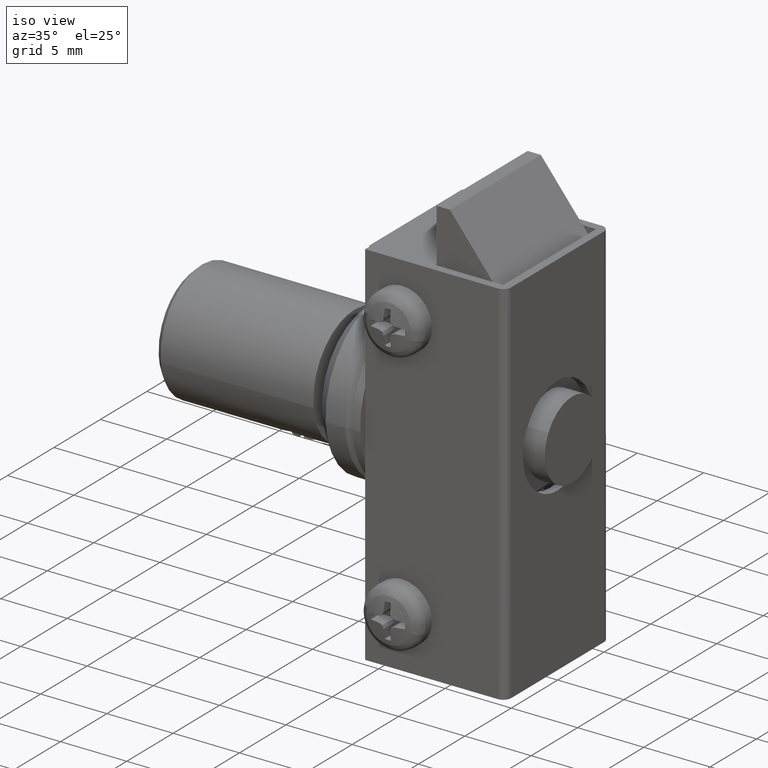
[diagram: clean part render]
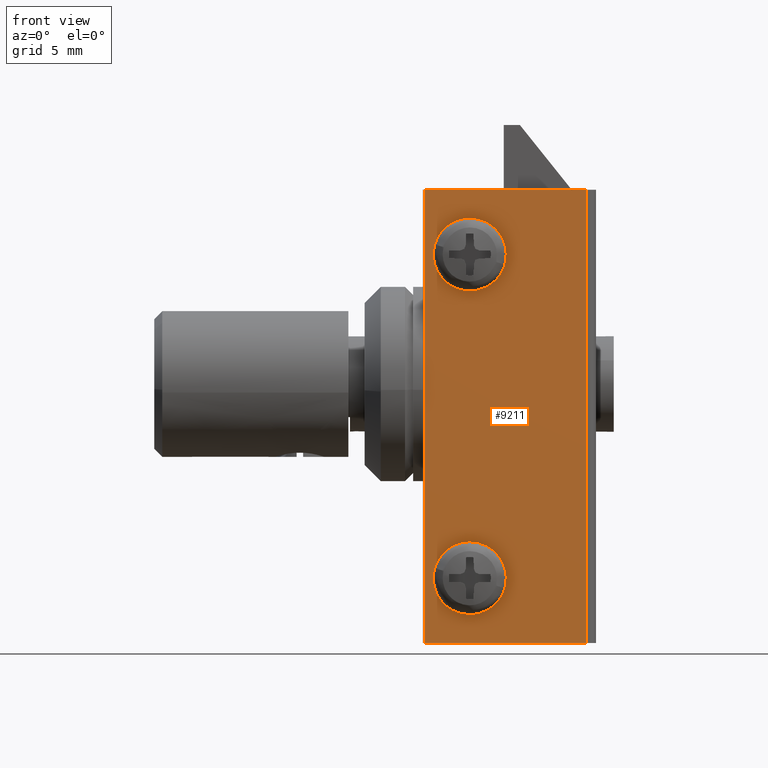
[diagram: tour spotlight — one face highlighted and labeled with its STEP entity id]
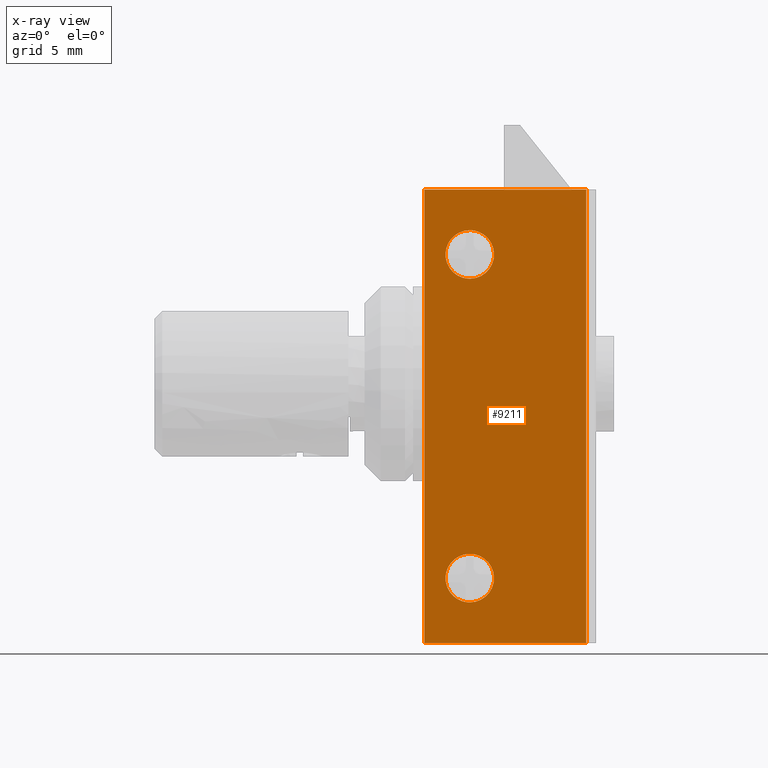
[diagram: x-ray of the same camera — body ghosted, this tour face saturated]
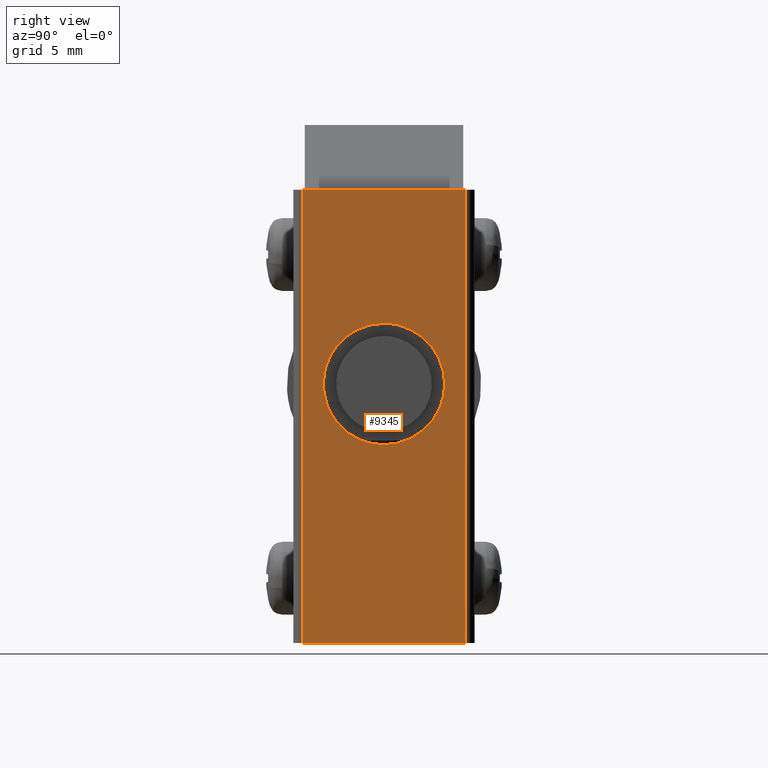
[diagram: tour spotlight — one face highlighted and labeled with its STEP entity id]
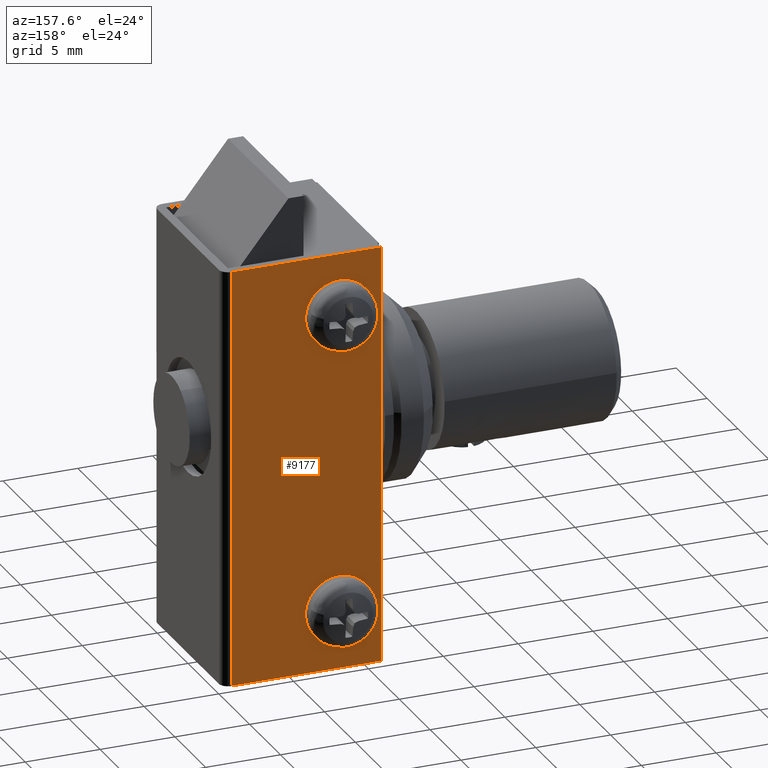
[diagram: tour spotlight — one face highlighted and labeled with its STEP entity id]
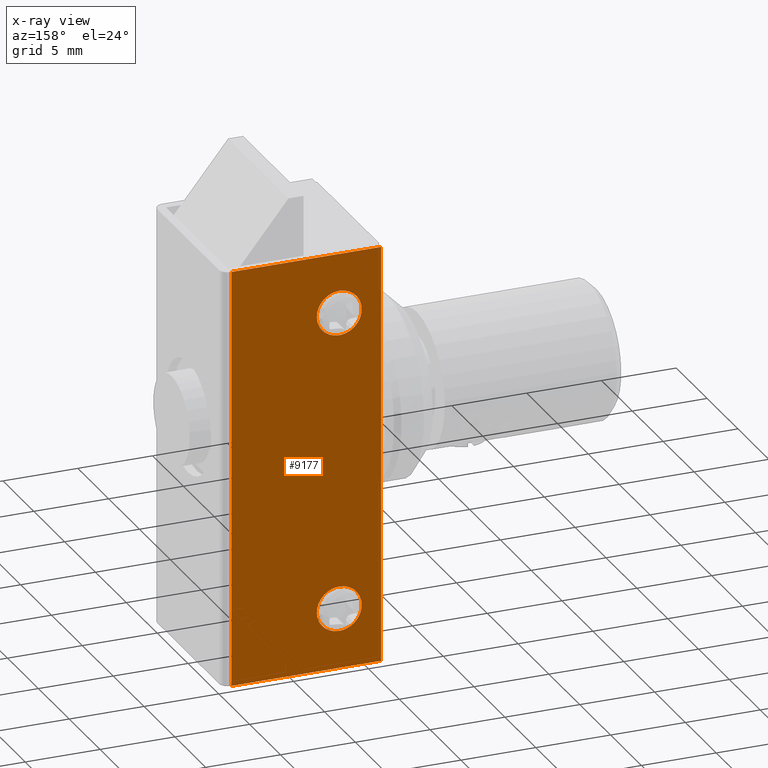
[diagram: x-ray of the same camera — body ghosted, this tour face saturated]
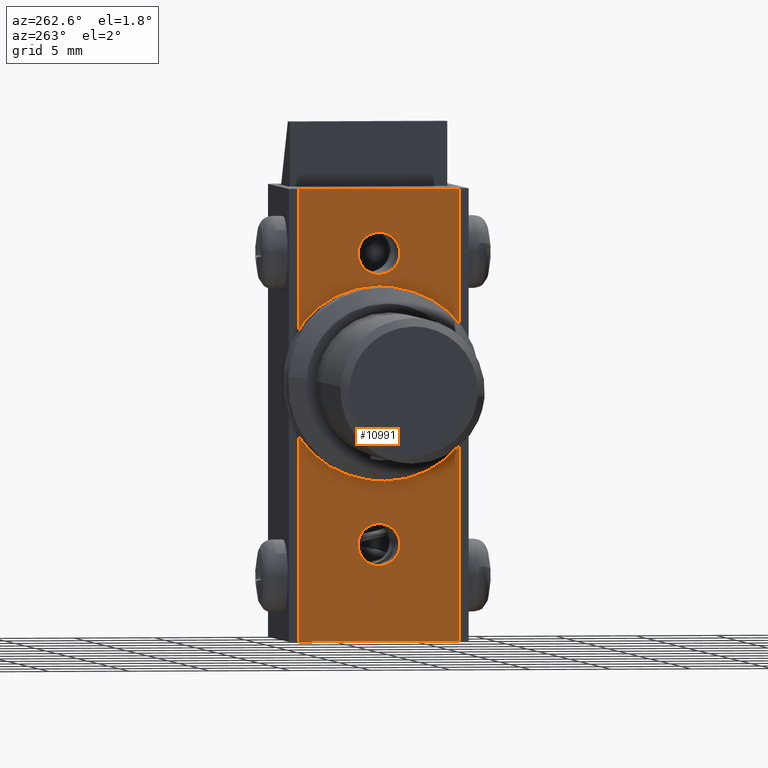
[diagram: tour spotlight — one face highlighted and labeled with its STEP entity id]
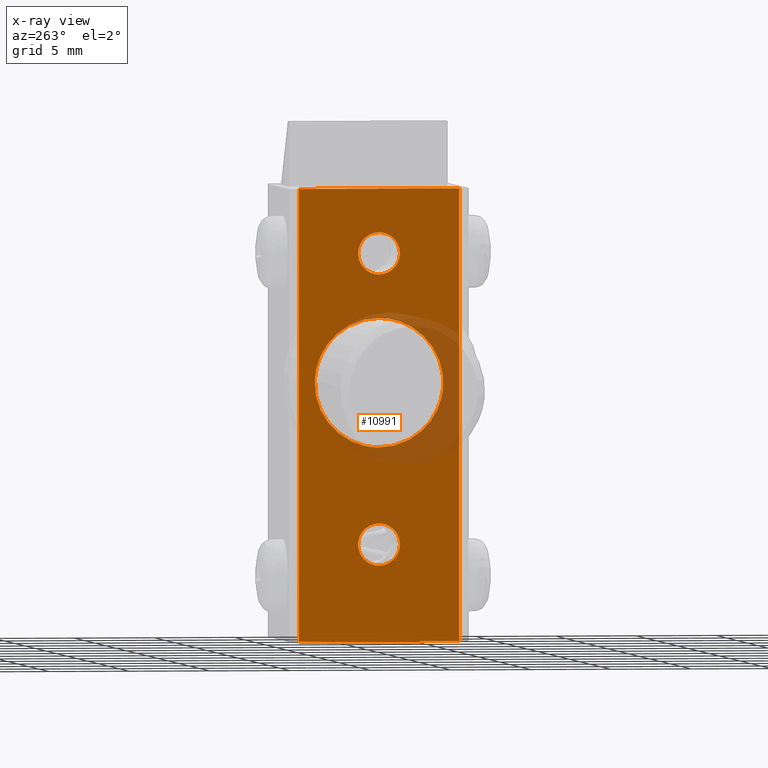
[diagram: x-ray of the same camera — body ghosted, this tour face saturated]
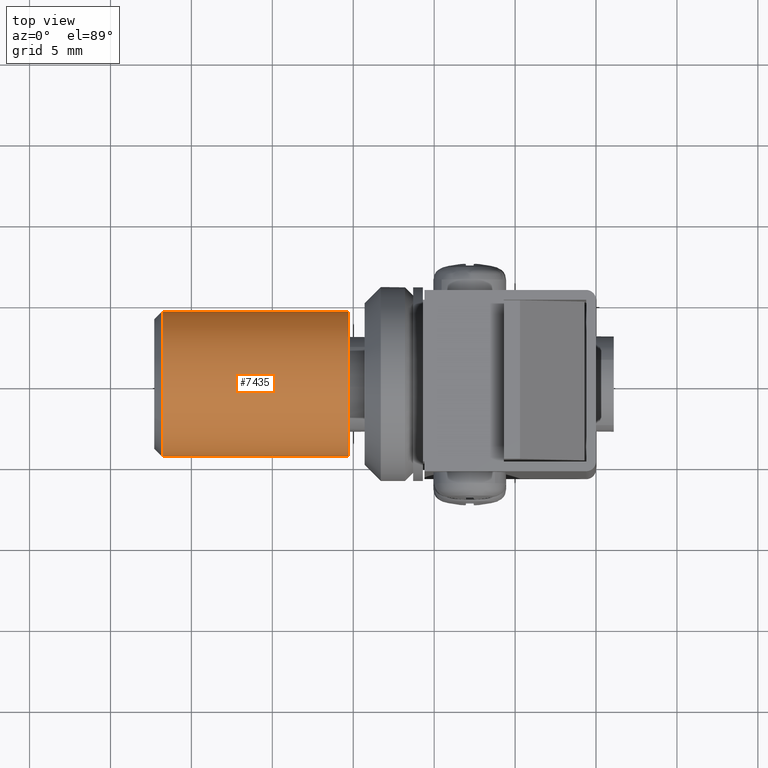
[diagram: tour spotlight — one face highlighted and labeled with its STEP entity id]
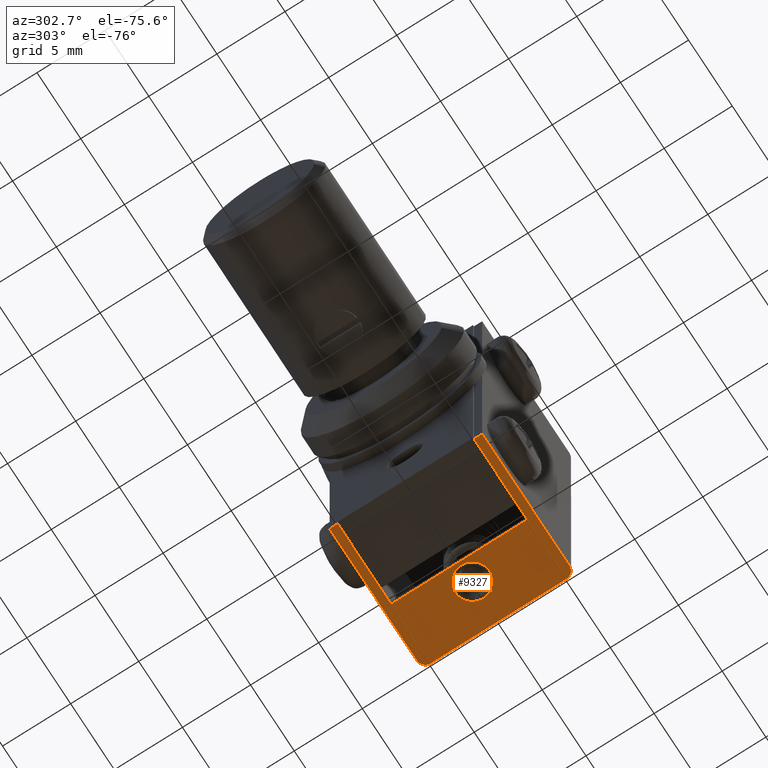
[diagram: tour spotlight — one face highlighted and labeled with its STEP entity id]
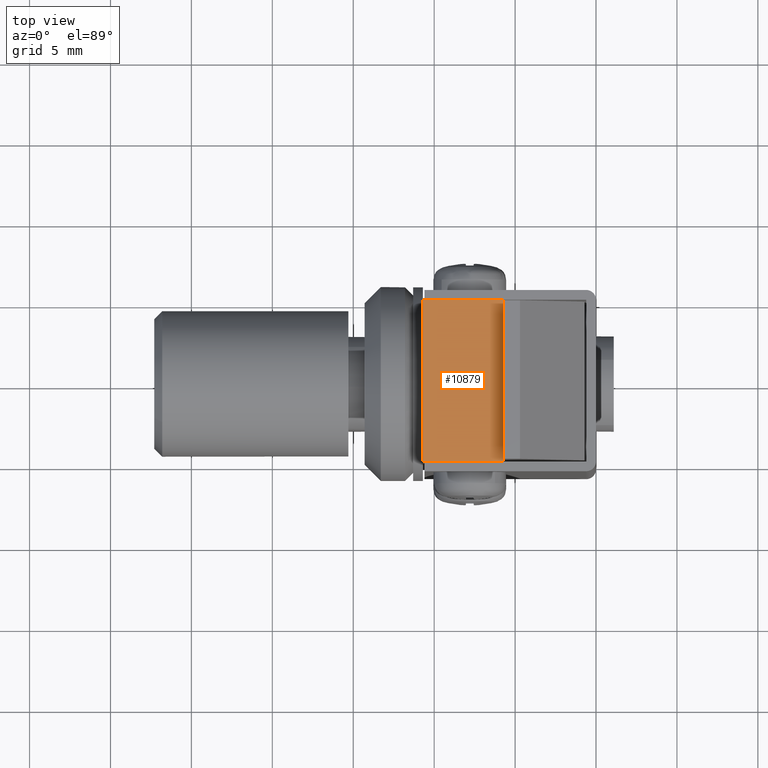
[diagram: tour spotlight — one face highlighted and labeled with its STEP entity id]
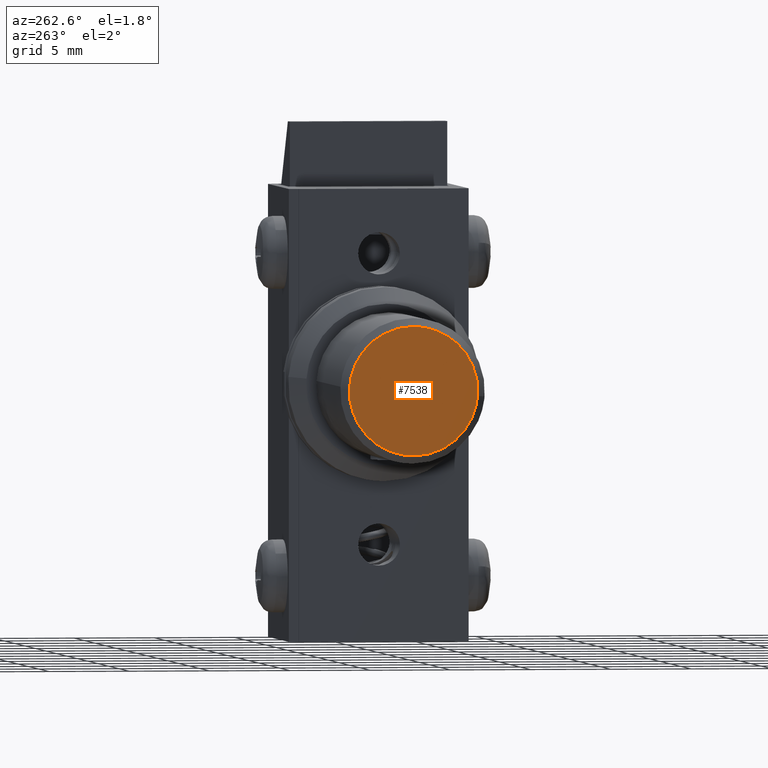
[diagram: tour spotlight — one face highlighted and labeled with its STEP entity id]
A machine part: a face-by-face anatomy tour. The part has 234 B-rep faces; the first image is the clean iso view, then the 8 largest visible faces are spotlighted one at a time (largest first), each with its STEP entity span.

Face 1 — front view, entity #9211. An x-ray twin of the same camera follows (body ghosted, this face saturated) — the face is partly hidden behind the body. In plain terms, the highlighted face is a freeform B-spline surface patch.
Definition (entity closure, byte-faithful):
#7780=CARTESIAN_POINT('',(-9.288386320728849,-5.600006000000099,23.813807996805689));
#7781=VERTEX_POINT('',#7780);
#7782=CARTESIAN_POINT('',(-7.799986999999869,-5.600006000000100,22.500000000000000));
#7783=VERTEX_POINT('',#7782);
#7784=CARTESIAN_POINT('',(-9.288386320728849,-5.600006000000099,23.813807996805686));
#7785=CARTESIAN_POINT('',(-9.124034900091509,-5.600006000000100,22.500000000000000));
#7786=CARTESIAN_POINT('',(-7.799986999999869,-5.600006000000100,22.500000000000000));
#7794=(BOUNDED_CURVE()B_SPLINE_CURVE(2,(#7784,#7785,#7786),.UNSPECIFIED.,.F.,.U.)B_SPLINE_CURVE_WITH_KNOTS((3,3),(0.271473928987599,0.500000000000000),.UNSPECIFIED.)CURVE()GEOMETRIC_REPRESENTATION_ITEM()RATIONAL_B_SPLINE_CURVE((0.954005430241926,0.732265053913545,1.0))REPRESENTATION_ITEM(''));
#7795=EDGE_CURVE('',#7781,#7783,#7794,.T.);
#7797=CARTESIAN_POINT('',(-6.300044115405084,-5.600006000000100,24.013089803416079));
#7798=VERTEX_POINT('',#7797);
#7799=CARTESIAN_POINT('',(-7.799986999999869,-5.600006000000100,22.500000000000000));
#7800=CARTESIAN_POINT('',(-6.299986999999871,-5.600006000000100,22.500000000000000));
#7801=CARTESIAN_POINT('',(-6.299986999999870,-5.600006000000100,24.0));
#7802=CARTESIAN_POINT('',(-6.299986999999870,-5.600006000000100,24.006545026399582));
#7803=CARTESIAN_POINT('',(-6.300044115405084,-5.600006000000100,24.013089803416079));
#7811=(BOUNDED_CURVE()B_SPLINE_CURVE(2,(#7799,#7800,#7801,#7802,#7803),.UNSPECIFIED.,.F.,.U.)B_SPLINE_CURVE_WITH_KNOTS((3,2,3),(0.500000000000000,0.750000000000000,0.751539894374566),.UNSPECIFIED.)CURVE()GEOMETRIC_REPRESENTATION_ITEM()RATIONAL_B_SPLINE_CURVE((1.0,0.707106781186548,1.0,0.998195901520002,0.996414028008809))REPRESENTATION_ITEM(''));
#7812=EDGE_CURVE('',#7783,#7798,#7811,.T.);
#7883=CARTESIAN_POINT('',(-7.799986999999869,-5.600006000000100,25.500000000000000));
#7884=VERTEX_POINT('',#7883);
#7885=CARTESIAN_POINT('',(-7.799986999999869,-5.600006000000100,25.500000000000000));
#7886=CARTESIAN_POINT('',(-9.299986999999868,-5.600006000000100,25.500000000000007));
#7887=CARTESIAN_POINT('',(-9.299986999999868,-5.600006000000100,24.0));
#7888=CARTESIAN_POINT('',(-9.299986999999870,-5.600006000000101,23.906542608624314));
#7889=CARTESIAN_POINT('',(-9.288386320728849,-5.600006000000099,23.813807996805686));
#7897=(BOUNDED_CURVE()B_SPLINE_CURVE(2,(#7885,#7886,#7887,#7888,#7889),.UNSPECIFIED.,.F.,.U.)B_SPLINE_CURVE_WITH_KNOTS((3,2,3),(0.0,0.250000000000000,0.271473928987599),.UNSPECIFIED.)CURVE()GEOMETRIC_REPRESENTATION_ITEM()RATIONAL_B_SPLINE_CURVE((1.0,0.707106781186548,1.0,0.974841727273002,0.954005430241926))REPRESENTATION_ITEM(''));
#7898=EDGE_CURVE('',#7884,#7781,#7897,.T.);
#7932=CARTESIAN_POINT('',(-6.300044115405084,-5.600006000000100,24.013089803416076));
#7933=CARTESIAN_POINT('',(-6.313020184441536,-5.600006000000101,25.500000000000007));
#7934=CARTESIAN_POINT('',(-7.799986999999869,-5.600006000000100,25.500000000000000));
#7942=(BOUNDED_CURVE()B_SPLINE_CURVE(2,(#7932,#7933,#7934),.UNSPECIFIED.,.F.,.U.)B_SPLINE_CURVE_WITH_KNOTS((3,3),(0.751539894374566,1.0),.UNSPECIFIED.)CURVE()GEOMETRIC_REPRESENTATION_ITEM()RATIONAL_B_SPLINE_CURVE((0.996414028008809,0.708910879666545,1.0))REPRESENTATION_ITEM(''));
#7943=EDGE_CURVE('',#7798,#7884,#7942,.T.);
#8152=CARTESIAN_POINT('',(-9.288386320728849,-5.600006000000100,3.813807996805804));
#8153=VERTEX_POINT('',#8152);
#8154=CARTESIAN_POINT('',(-7.799986999999869,-5.600006000000100,2.500000000000116));
#8155=VERTEX_POINT('',#8154);
#8156=CARTESIAN_POINT('',(-9.288386320728849,-5.600006000000100,3.813807996805805));
#8157=CARTESIAN_POINT('',(-9.124034900091509,-5.600006000000099,2.500000000000116));
#8158=CARTESIAN_POINT('',(-7.799986999999869,-5.600006000000100,2.500000000000116));
#8166=(BOUNDED_CURVE()B_SPLINE_CURVE(2,(#8156,#8157,#8158),.UNSPECIFIED.,.F.,.U.)B_SPLINE_CURVE_WITH_KNOTS((3,3),(0.271473928987599,0.500000000000000),.UNSPECIFIED.)CURVE()GEOMETRIC_REPRESENTATION_ITEM()RATIONAL_B_SPLINE_CURVE((0.954005430241926,0.732265053913545,1.0))REPRESENTATION_ITEM(''));
#8167=EDGE_CURVE('',#8153,#8155,#8166,.T.);
#8169=CARTESIAN_POINT('',(-6.300044115405084,-5.600006000000100,4.013089803416197));
#8170=VERTEX_POINT('',#8169);
#8171=CARTESIAN_POINT('',(-7.799986999999869,-5.600006000000100,2.500000000000116));
#8172=CARTESIAN_POINT('',(-6.299986999999871,-5.600006000000100,2.500000000000116));
#8173=CARTESIAN_POINT('',(-6.299986999999870,-5.600006000000100,4.000000000000116));
#8174=CARTESIAN_POINT('',(-6.299986999999870,-5.600006000000100,4.006545026399695));
#8175=CARTESIAN_POINT('',(-6.300044115405084,-5.600006000000100,4.013089803416197));
#8183=(BOUNDED_CURVE()B_SPLINE_CURVE(2,(#8171,#8172,#8173,#8174,#8175),.UNSPECIFIED.,.F.,.U.)B_SPLINE_CURVE_WITH_KNOTS((3,2,3),(0.500000000000000,0.750000000000000,0.751539894374566),.UNSPECIFIED.)CURVE()GEOMETRIC_REPRESENTATION_ITEM()RATIONAL_B_SPLINE_CURVE((1.0,0.707106781186548,1.0,0.998195901520002,0.996414028008809))REPRESENTATION_ITEM(''));
#8184=EDGE_CURVE('',#8155,#8170,#8183,.T.);
#8255=CARTESIAN_POINT('',(-7.799986999999869,-5.600006000000100,5.500000000000116));
#8256=VERTEX_POINT('',#8255);
#8257=CARTESIAN_POINT('',(-7.799986999999869,-5.600006000000100,5.500000000000116));
#8258=CARTESIAN_POINT('',(-9.299986999999868,-5.600006000000100,5.500000000000115));
#8259=CARTESIAN_POINT('',(-9.299986999999868,-5.600006000000100,4.000000000000116));
#8260=CARTESIAN_POINT('',(-9.299986999999868,-5.600006000000099,3.906542608624434));
#8261=CARTESIAN_POINT('',(-9.288386320728849,-5.600006000000100,3.813807996805804));
#8269=(BOUNDED_CURVE()B_SPLINE_CURVE(2,(#8257,#8258,#8259,#8260,#8261),.UNSPECIFIED.,.F.,.U.)B_SPLINE_CURVE_WITH_KNOTS((3,2,3),(0.0,0.250000000000000,0.271473928987599),.UNSPECIFIED.)CURVE()GEOMETRIC_REPRESENTATION_ITEM()RATIONAL_B_SPLINE_CURVE((1.0,0.707106781186548,1.0,0.974841727273002,0.954005430241926))REPRESENTATION_ITEM(''));
#8270=EDGE_CURVE('',#8256,#8153,#8269,.T.);
#8304=CARTESIAN_POINT('',(-6.300044115405084,-5.600006000000100,4.013089803416198));
#8305=CARTESIAN_POINT('',(-6.313020184441541,-5.600006000000099,5.500000000000116));
#8306=CARTESIAN_POINT('',(-7.799986999999869,-5.600006000000100,5.500000000000116));
#8314=(BOUNDED_CURVE()B_SPLINE_CURVE(2,(#8304,#8305,#8306),.UNSPECIFIED.,.F.,.U.)B_SPLINE_CURVE_WITH_KNOTS((3,3),(0.751539894374567,1.0),.UNSPECIFIED.)CURVE()GEOMETRIC_REPRESENTATION_ITEM()RATIONAL_B_SPLINE_CURVE((0.996414028008808,0.708910879666546,1.0))REPRESENTATION_ITEM(''));
#8315=EDGE_CURVE('',#8170,#8256,#8314,.T.);
#8828=CARTESIAN_POINT('',(-0.600000000000000,-5.600006000000090,0.0));
#8829=VERTEX_POINT('',#8828);
#8850=CARTESIAN_POINT('',(-0.600000000000000,-5.600006000000090,28.0));
#8851=VERTEX_POINT('',#8850);
#8865=CARTESIAN_POINT('',(-0.600000000000000,-5.600006000000090,0.0));
#8866=CARTESIAN_POINT('',(-0.600000000000000,-5.600006000000090,28.0));
#8867=QUASI_UNIFORM_CURVE('',1,(#8865,#8866),.UNSPECIFIED.,.F.,.U.);
#8868=EDGE_CURVE('',#8829,#8851,#8867,.T.);
#9072=CARTESIAN_POINT('',(-10.600006000000119,-5.600006000000090,28.0));
#9073=VERTEX_POINT('',#9072);
#9079=CARTESIAN_POINT('',(-10.600006000000119,-5.600006000000090,28.0));
#9080=CARTESIAN_POINT('',(-0.600000000000000,-5.600006000000090,28.0));
#9081=QUASI_UNIFORM_CURVE('',1,(#9079,#9080),.UNSPECIFIED.,.F.,.U.);
#9082=EDGE_CURVE('',#9073,#8851,#9081,.T.);
#9178=CARTESIAN_POINT('',(-11.099506374191080,-5.600006000000090,29.398599945730570));
#9179=CARTESIAN_POINT('',(-11.099506374191080,-5.600006000000091,-1.398600696749092));
#9180=CARTESIAN_POINT('',(-0.100499446995002,-5.600006000000090,29.398599945730570));
#9181=CARTESIAN_POINT('',(-0.100499446995002,-5.600006000000091,-1.398600696749092));
#9182=B_SPLINE_SURFACE_WITH_KNOTS('',1,1,((#9178,#9180),(#9179,#9181)),.UNSPECIFIED.,.F.,.F.,.U.,(2,2),(2,2),(0.0,30.797200642479659),(0.0,10.999006927196080),.UNSPECIFIED.);
#9183=CARTESIAN_POINT('',(-10.600006000000119,-5.600006000000090,0.0));
#9184=VERTEX_POINT('',#9183);
#9185=CARTESIAN_POINT('',(-10.600006000000119,-5.600006000000090,0.0));
#9186=CARTESIAN_POINT('',(-0.600000000000000,-5.600006000000090,0.0));
#9187=QUASI_UNIFORM_CURVE('',1,(#9185,#9186),.UNSPECIFIED.,.F.,.U.);
#9188=EDGE_CURVE('',#9184,#8829,#9187,.T.);
#9189=ORIENTED_EDGE('',*,*,#9188,.T.);
#9190=ORIENTED_EDGE('',*,*,#8868,.T.);
#9191=ORIENTED_EDGE('',*,*,#9082,.F.);
#9192=CARTESIAN_POINT('',(-10.600006000000119,-5.600006000000090,0.0));
#9193=CARTESIAN_POINT('',(-10.600006000000119,-5.600006000000090,28.0));
#9194=QUASI_UNIFORM_CURVE('',1,(#9192,#9193),.UNSPECIFIED.,.F.,.U.);
#9195=EDGE_CURVE('',#9184,#9073,#9194,.T.);
#9196=ORIENTED_EDGE('',*,*,#9195,.F.);
#9197=EDGE_LOOP('',(#9189,#9190,#9191,#9196));
#9198=FACE_OUTER_BOUND('',#9197,.T.);
#9199=ORIENTED_EDGE('',*,*,#8184,.F.);
#9200=ORIENTED_EDGE('',*,*,#8167,.F.);
#9201=ORIENTED_EDGE('',*,*,#8270,.F.);
#9202=ORIENTED_EDGE('',*,*,#8315,.F.);
#9203=EDGE_LOOP('',(#9199,#9200,#9201,#9202));
#9204=FACE_BOUND('',#9203,.T.);
#9205=ORIENTED_EDGE('',*,*,#7812,.F.);
#9206=ORIENTED_EDGE('',*,*,#7795,.F.);
#9207=ORIENTED_EDGE('',*,*,#7898,.F.);
#9208=ORIENTED_EDGE('',*,*,#7943,.F.);
#9209=EDGE_LOOP('',(#9205,#9206,#9207,#9208));
#9210=FACE_BOUND('',#9209,.T.);
#9211=ADVANCED_FACE('',(#9198,#9204,#9210),#9182,.T.);

Face 2 — right view, entity #9345. In plain terms, the highlighted face is a freeform B-spline surface patch.
Definition (entity closure, byte-faithful):
#7651=CARTESIAN_POINT('',(-1.929663E-013,2.435429808636818,13.148477310768330));
#7652=VERTEX_POINT('',#7651);
#7658=CARTESIAN_POINT('',(0.0,0.0,19.750000000000000));
#7659=VERTEX_POINT('',#7658);
#7660=CARTESIAN_POINT('',(-1.929663E-013,2.435429808636817,13.148477310768337));
#7661=CARTESIAN_POINT('',(0.0,3.750000000000000,14.271225726755535));
#7662=CARTESIAN_POINT('',(0.0,3.750000000000000,16.0));
#7663=CARTESIAN_POINT('',(0.0,3.750000000000000,19.749999999999996));
#7664=CARTESIAN_POINT('',(0.0,0.0,19.750000000000000));
#7672=(BOUNDED_CURVE()B_SPLINE_CURVE(2,(#7660,#7661,#7662,#7663,#7664),.UNSPECIFIED.,.F.,.U.)B_SPLINE_CURVE_WITH_KNOTS((3,2,3),(0.613143121856092,0.750000000000000,1.0),.UNSPECIFIED.)CURVE()GEOMETRIC_REPRESENTATION_ITEM()RATIONAL_B_SPLINE_CURVE((0.854871040416882,0.839662193774682,1.0,0.707106781186547,1.0))REPRESENTATION_ITEM(''));
#7673=EDGE_CURVE('',#7652,#7659,#7672,.T.);
#7675=CARTESIAN_POINT('',(-1.387779E-017,-2.851523446437805,13.564571077938689));
#7676=VERTEX_POINT('',#7675);
#7677=CARTESIAN_POINT('',(0.0,0.0,19.750000000000000));
#7678=CARTESIAN_POINT('',(0.0,-3.750000000000000,19.749999999999996));
#7679=CARTESIAN_POINT('',(0.0,-3.750000000000000,16.0));
#7680=CARTESIAN_POINT('',(0.0,-3.750000000000000,14.616552901488435));
#7681=CARTESIAN_POINT('',(-1.387779E-017,-2.851523446437806,13.564571077938687));
#7689=(BOUNDED_CURVE()B_SPLINE_CURVE(2,(#7677,#7678,#7679,#7680,#7681),.UNSPECIFIED.,.F.,.U.)B_SPLINE_CURVE_WITH_KNOTS((3,2,3),(0.0,0.250000000000000,0.363143094617179),.UNSPECIFIED.)CURVE()GEOMETRIC_REPRESENTATION_ITEM()RATIONAL_B_SPLINE_CURVE((1.0,0.707106781186547,1.0,0.867444619324237,0.854871046470987))REPRESENTATION_ITEM(''));
#7690=EDGE_CURVE('',#7659,#7676,#7689,.T.);
#7730=CARTESIAN_POINT('',(0.0,0.0,12.250000000000000));
#7731=VERTEX_POINT('',#7730);
#7732=CARTESIAN_POINT('',(-1.387779E-017,-2.851523446437806,13.564571077938687));
#7733=CARTESIAN_POINT('',(0.0,-1.728774683030205,12.249999999999998));
#7734=CARTESIAN_POINT('',(0.0,0.0,12.250000000000000));
#7742=(BOUNDED_CURVE()B_SPLINE_CURVE(2,(#7732,#7733,#7734),.UNSPECIFIED.,.F.,.U.)B_SPLINE_CURVE_WITH_KNOTS((3,3),(0.363143094617179,0.500000000000000),.UNSPECIFIED.)CURVE()GEOMETRIC_REPRESENTATION_ITEM()RATIONAL_B_SPLINE_CURVE((0.854871046470987,0.839662161862310,1.0))REPRESENTATION_ITEM(''));
#7743=EDGE_CURVE('',#7676,#7731,#7742,.T.);
#7745=CARTESIAN_POINT('',(0.0,0.0,12.250000000000000));
#7746=CARTESIAN_POINT('',(0.0,1.383447482468505,12.249999999999998));
#7747=CARTESIAN_POINT('',(-1.929663E-013,2.435429808636817,13.148477310768337));
#7755=(BOUNDED_CURVE()B_SPLINE_CURVE(2,(#7745,#7746,#7747),.UNSPECIFIED.,.F.,.U.)B_SPLINE_CURVE_WITH_KNOTS((3,3),(0.500000000000000,0.613143121856092),.UNSPECIFIED.)CURVE()GEOMETRIC_REPRESENTATION_ITEM()RATIONAL_B_SPLINE_CURVE((1.0,0.867444587411866,0.854871040416882))REPRESENTATION_ITEM(''));
#7756=EDGE_CURVE('',#7731,#7652,#7755,.T.);
#8826=CARTESIAN_POINT('',(9.184559E-016,-5.000006000000091,0.0));
#8827=VERTEX_POINT('',#8826);
#8843=CARTESIAN_POINT('',(9.184559E-016,-5.000006000000091,28.0));
#8844=VERTEX_POINT('',#8843);
#8845=CARTESIAN_POINT('',(9.184559E-016,-5.000006000000091,28.0));
#8846=CARTESIAN_POINT('',(9.184559E-016,-5.000006000000091,0.0));
#8847=QUASI_UNIFORM_CURVE('',1,(#8845,#8846),.UNSPECIFIED.,.F.,.U.);
#8848=EDGE_CURVE('',#8844,#8827,#8847,.T.);
#8889=CARTESIAN_POINT('',(-9.184529E-016,4.999990000000000,0.0));
#8890=VERTEX_POINT('',#8889);
#8911=CARTESIAN_POINT('',(-9.184529E-016,4.999990000000000,28.0));
#8912=VERTEX_POINT('',#8911);
#8926=CARTESIAN_POINT('',(-9.184529E-016,4.999990000000000,0.0));
#8927=CARTESIAN_POINT('',(-9.184529E-016,4.999990000000000,28.0));
#8928=QUASI_UNIFORM_CURVE('',1,(#8926,#8927),.UNSPECIFIED.,.F.,.U.);
#8929=EDGE_CURVE('',#8890,#8912,#8928,.T.);
#9031=CARTESIAN_POINT('',(9.184559E-016,-5.000006000000091,28.0));
#9032=CARTESIAN_POINT('',(-9.184529E-016,4.999990000000000,28.0));
#9033=QUASI_UNIFORM_CURVE('',1,(#9031,#9032),.UNSPECIFIED.,.F.,.U.);
#9034=EDGE_CURVE('',#8844,#8912,#9033,.T.);
#9295=CARTESIAN_POINT('',(9.184559E-016,-5.000006000000091,0.0));
#9296=CARTESIAN_POINT('',(-9.184529E-016,4.999990000000000,0.0));
#9297=QUASI_UNIFORM_CURVE('',1,(#9295,#9296),.UNSPECIFIED.,.F.,.U.);
#9298=EDGE_CURVE('',#8827,#8890,#9297,.T.);
#9328=CARTESIAN_POINT('',(1.028670E-015,-5.499506062436586,-1.398599945730568));
#9329=CARTESIAN_POINT('',(1.028670E-015,5.499490062436494,-1.398599945730568));
#9330=CARTESIAN_POINT('',(1.028670E-015,-5.499506062436586,29.398600696749099));
#9331=CARTESIAN_POINT('',(1.028670E-015,5.499490062436494,29.398600696749099));
#9332=B_SPLINE_SURFACE_WITH_KNOTS('',1,1,((#9328,#9330),(#9329,#9331)),.UNSPECIFIED.,.F.,.F.,.U.,(2,2),(2,2),(0.0,10.998996124873081),(0.0,30.797200642479659),.UNSPECIFIED.);
#9333=ORIENTED_EDGE('',*,*,#9298,.T.);
#9334=ORIENTED_EDGE('',*,*,#8929,.T.);
#9335=ORIENTED_EDGE('',*,*,#9034,.F.);
#9336=ORIENTED_EDGE('',*,*,#8848,.T.);
#9337=EDGE_LOOP('',(#9333,#9334,#9335,#9336));
#9338=FACE_OUTER_BOUND('',#9337,.T.);
#9339=ORIENTED_EDGE('',*,*,#7756,.F.);
#9340=ORIENTED_EDGE('',*,*,#7743,.F.);
#9341=ORIENTED_EDGE('',*,*,#7690,.F.);
#9342=ORIENTED_EDGE('',*,*,#7673,.F.);
#9343=EDGE_LOOP('',(#9339,#9340,#9341,#9342));
#9344=FACE_BOUND('',#9343,.T.);
#9345=ADVANCED_FACE('',(#9338,#9344),#9332,.T.);

Face 3 — auxiliary view, entity #9177. An x-ray twin of the same camera follows (body ghosted, this face saturated) — the face is partly hidden behind the body. In plain terms, the highlighted face is a freeform B-spline surface patch.
Definition (entity closure, byte-faithful):
#8004=CARTESIAN_POINT('',(-6.302784802369668,5.599990000000000,23.908427190655210));
#8005=VERTEX_POINT('',#8004);
#8011=CARTESIAN_POINT('',(-7.799986999999869,5.599990000000000,22.500000000000000));
#8012=VERTEX_POINT('',#8011);
#8013=CARTESIAN_POINT('',(-7.799986999999869,5.599990000000000,22.500000000000000));
#8014=CARTESIAN_POINT('',(-6.388927899721585,5.599990000000002,22.499999999999993));
#8015=CARTESIAN_POINT('',(-6.302784802369668,5.599990000000001,23.908427190655217));
#8023=(BOUNDED_CURVE()B_SPLINE_CURVE(2,(#8013,#8014,#8015),.UNSPECIFIED.,.F.,.U.)B_SPLINE_CURVE_WITH_KNOTS((3,3),(0.500000000000000,0.739332962232173),.UNSPECIFIED.)CURVE()GEOMETRIC_REPRESENTATION_ITEM()RATIONAL_B_SPLINE_CURVE((1.0,0.719603993294642,0.976072041652208))REPRESENTATION_ITEM(''));
#8024=EDGE_CURVE('',#8012,#8005,#8023,.T.);
#8026=CARTESIAN_POINT('',(-9.289501289544546,5.599990000000000,24.177051351992048));
#8027=VERTEX_POINT('',#8026);
#8028=CARTESIAN_POINT('',(-9.289501289544546,5.599990000000000,24.177051351992056));
#8029=CARTESIAN_POINT('',(-9.299986999999868,5.599989999999999,24.088836179484847));
#8030=CARTESIAN_POINT('',(-9.299986999999868,5.599990000000000,24.0));
#8031=CARTESIAN_POINT('',(-9.299986999999868,5.599990000000001,22.500000000000000));
#8032=CARTESIAN_POINT('',(-7.799986999999869,5.599990000000000,22.500000000000000));
#8040=(BOUNDED_CURVE()B_SPLINE_CURVE(2,(#8028,#8029,#8030,#8031,#8032),.UNSPECIFIED.,.F.,.U.)B_SPLINE_CURVE_WITH_KNOTS((3,2,3),(0.229562473514075,0.250000000000000,0.500000000000000),.UNSPECIFIED.)CURVE()GEOMETRIC_REPRESENTATION_ITEM()RATIONAL_B_SPLINE_CURVE((0.956026754184811,0.976055948331809,1.0,0.707106781186548,1.0))REPRESENTATION_ITEM(''));
#8041=EDGE_CURVE('',#8027,#8012,#8040,.T.);
#8085=CARTESIAN_POINT('',(-7.799986999999869,5.599990000000000,25.500000000000000));
#8086=VERTEX_POINT('',#8085);
#8087=CARTESIAN_POINT('',(-7.799986999999869,5.599990000000000,25.500000000000000));
#8088=CARTESIAN_POINT('',(-9.132248788914465,5.599990000000000,25.500000000000011));
#8089=CARTESIAN_POINT('',(-9.289501289544546,5.599990000000000,24.177051351992056));
#8097=(BOUNDED_CURVE()B_SPLINE_CURVE(2,(#8087,#8088,#8089),.UNSPECIFIED.,.F.,.U.)B_SPLINE_CURVE_WITH_KNOTS((3,3),(0.0,0.229562473514075),.UNSPECIFIED.)CURVE()GEOMETRIC_REPRESENTATION_ITEM()RATIONAL_B_SPLINE_CURVE((1.0,0.731050832854738,0.956026754184811))REPRESENTATION_ITEM(''));
#8098=EDGE_CURVE('',#8086,#8027,#8097,.T.);
#8100=CARTESIAN_POINT('',(-6.302784802369668,5.599990000000000,23.908427190655217));
#8101=CARTESIAN_POINT('',(-6.299986999999869,5.599990000000000,23.954170855009501));
#8102=CARTESIAN_POINT('',(-6.299986999999870,5.599990000000000,24.0));
#8103=CARTESIAN_POINT('',(-6.299986999999871,5.599990000000001,25.500000000000007));
#8104=CARTESIAN_POINT('',(-7.799986999999869,5.599990000000000,25.500000000000000));
#8112=(BOUNDED_CURVE()B_SPLINE_CURVE(2,(#8100,#8101,#8102,#8103,#8104),.UNSPECIFIED.,.F.,.U.)B_SPLINE_CURVE_WITH_KNOTS((3,2,3),(0.739332962232172,0.750000000000000,1.0),.UNSPECIFIED.)CURVE()GEOMETRIC_REPRESENTATION_ITEM()RATIONAL_B_SPLINE_CURVE((0.976072041652207,0.987502787891905,1.0,0.707106781186548,1.0))REPRESENTATION_ITEM(''));
#8113=EDGE_CURVE('',#8005,#8086,#8112,.T.);
#8376=CARTESIAN_POINT('',(-6.302784802369668,5.599990000000000,3.908427190655329));
#8377=VERTEX_POINT('',#8376);
#8383=CARTESIAN_POINT('',(-7.799986999999869,5.599990000000000,2.500000000000116));
#8384=VERTEX_POINT('',#8383);
#8385=CARTESIAN_POINT('',(-7.799986999999869,5.599990000000000,2.500000000000116));
#8386=CARTESIAN_POINT('',(-6.388927899721585,5.599990000000002,2.500000000000116));
#8387=CARTESIAN_POINT('',(-6.302784802369668,5.599990000000001,3.908427190655329));
#8395=(BOUNDED_CURVE()B_SPLINE_CURVE(2,(#8385,#8386,#8387),.UNSPECIFIED.,.F.,.U.)B_SPLINE_CURVE_WITH_KNOTS((3,3),(0.500000000000000,0.739332962232173),.UNSPECIFIED.)CURVE()GEOMETRIC_REPRESENTATION_ITEM()RATIONAL_B_SPLINE_CURVE((1.0,0.719603993294642,0.976072041652208))REPRESENTATION_ITEM(''));
#8396=EDGE_CURVE('',#8384,#8377,#8395,.T.);
#8398=CARTESIAN_POINT('',(-9.289501289544546,5.599990000000000,4.177051351992168));
#8399=VERTEX_POINT('',#8398);
#8400=CARTESIAN_POINT('',(-9.289501289544546,5.599990000000000,4.177051351992168));
#8401=CARTESIAN_POINT('',(-9.299986999999868,5.599989999999999,4.088836179484967));
#8402=CARTESIAN_POINT('',(-9.299986999999868,5.599990000000000,4.000000000000116));
#8403=CARTESIAN_POINT('',(-9.299986999999868,5.599990000000001,2.500000000000116));
#8404=CARTESIAN_POINT('',(-7.799986999999869,5.599990000000000,2.500000000000116));
#8412=(BOUNDED_CURVE()B_SPLINE_CURVE(2,(#8400,#8401,#8402,#8403,#8404),.UNSPECIFIED.,.F.,.U.)B_SPLINE_CURVE_WITH_KNOTS((3,2,3),(0.229562473514075,0.250000000000000,0.500000000000000),.UNSPECIFIED.)CURVE()GEOMETRIC_REPRESENTATION_ITEM()RATIONAL_B_SPLINE_CURVE((0.956026754184811,0.976055948331809,1.0,0.707106781186548,1.0))REPRESENTATION_ITEM(''));
#8413=EDGE_CURVE('',#8399,#8384,#8412,.T.);
#8457=CARTESIAN_POINT('',(-7.799986999999869,5.599990000000000,5.500000000000116));
#8458=VERTEX_POINT('',#8457);
#8459=CARTESIAN_POINT('',(-7.799986999999869,5.599990000000000,5.500000000000116));
#8460=CARTESIAN_POINT('',(-9.132248788914465,5.599990000000000,5.500000000000116));
#8461=CARTESIAN_POINT('',(-9.289501289544546,5.599990000000000,4.177051351992168));
#8469=(BOUNDED_CURVE()B_SPLINE_CURVE(2,(#8459,#8460,#8461),.UNSPECIFIED.,.F.,.U.)B_SPLINE_CURVE_WITH_KNOTS((3,3),(0.0,0.229562473514075),.UNSPECIFIED.)CURVE()GEOMETRIC_REPRESENTATION_ITEM()RATIONAL_B_SPLINE_CURVE((1.0,0.731050832854738,0.956026754184811))REPRESENTATION_ITEM(''));
#8470=EDGE_CURVE('',#8458,#8399,#8469,.T.);
#8472=CARTESIAN_POINT('',(-6.302784802369668,5.599990000000000,3.908427190655329));
#8473=CARTESIAN_POINT('',(-6.299986999999869,5.599990000000000,3.954170855009613));
#8474=CARTESIAN_POINT('',(-6.299986999999870,5.599990000000000,4.000000000000116));
#8475=CARTESIAN_POINT('',(-6.299986999999871,5.599990000000001,5.500000000000115));
#8476=CARTESIAN_POINT('',(-7.799986999999869,5.599990000000000,5.500000000000116));
#8484=(BOUNDED_CURVE()B_SPLINE_CURVE(2,(#8472,#8473,#8474,#8475,#8476),.UNSPECIFIED.,.F.,.U.)B_SPLINE_CURVE_WITH_KNOTS((3,2,3),(0.739332962232172,0.750000000000000,1.0),.UNSPECIFIED.)CURVE()GEOMETRIC_REPRESENTATION_ITEM()RATIONAL_B_SPLINE_CURVE((0.976072041652207,0.987502787891905,1.0,0.707106781186548,1.0))REPRESENTATION_ITEM(''));
#8485=EDGE_CURVE('',#8377,#8458,#8484,.T.);
#8887=CARTESIAN_POINT('',(-0.600000000000000,5.599990000000000,0.0));
#8888=VERTEX_POINT('',#8887);
#8904=CARTESIAN_POINT('',(-0.600000000000000,5.599990000000000,28.0));
#8905=VERTEX_POINT('',#8904);
#8906=CARTESIAN_POINT('',(-0.600000000000000,5.599990000000000,28.0));
#8907=CARTESIAN_POINT('',(-0.600000000000000,5.599990000000000,0.0));
#8908=QUASI_UNIFORM_CURVE('',1,(#8906,#8907),.UNSPECIFIED.,.F.,.U.);
#8909=EDGE_CURVE('',#8905,#8888,#8908,.T.);
#9037=CARTESIAN_POINT('',(-10.600006000000119,5.599990000000000,28.0));
#9038=VERTEX_POINT('',#9037);
#9039=CARTESIAN_POINT('',(-0.600000000000000,5.599990000000000,28.0));
#9040=CARTESIAN_POINT('',(-10.600006000000119,5.599990000000000,28.0));
#9041=QUASI_UNIFORM_CURVE('',1,(#9039,#9040),.UNSPECIFIED.,.F.,.U.);
#9042=EDGE_CURVE('',#8905,#9038,#9041,.T.);
#9134=CARTESIAN_POINT('',(-10.600006000000119,5.599990000000000,0.0));
#9135=VERTEX_POINT('',#9134);
#9136=CARTESIAN_POINT('',(-10.600006000000119,5.599990000000000,0.0));
#9137=CARTESIAN_POINT('',(-10.600006000000119,5.599990000000000,28.0));
#9138=QUASI_UNIFORM_CURVE('',1,(#9136,#9137),.UNSPECIFIED.,.F.,.U.);
#9139=EDGE_CURVE('',#9135,#9038,#9138,.T.);
#9150=CARTESIAN_POINT('',(-11.099506374191080,5.599990000000000,-1.398599945730568));
#9151=CARTESIAN_POINT('',(-11.099506374191080,5.599990000000000,29.398600696749099));
#9152=CARTESIAN_POINT('',(-0.100499446995002,5.599990000000000,-1.398599945730568));
#9153=CARTESIAN_POINT('',(-0.100499446995002,5.599990000000000,29.398600696749099));
#9154=B_SPLINE_SURFACE_WITH_KNOTS('',1,1,((#9150,#9152),(#9151,#9153)),.UNSPECIFIED.,.F.,.F.,.U.,(2,2),(2,2),(0.0,30.797200642479659),(0.0,10.999006927196080),.UNSPECIFIED.);
#9155=ORIENTED_EDGE('',*,*,#9042,.F.);
#9156=ORIENTED_EDGE('',*,*,#8909,.T.);
#9157=CARTESIAN_POINT('',(-0.600000000000000,5.599990000000000,0.0));
#9158=CARTESIAN_POINT('',(-10.600006000000119,5.599990000000000,0.0));
#9159=QUASI_UNIFORM_CURVE('',1,(#9157,#9158),.UNSPECIFIED.,.F.,.U.);
#9160=EDGE_CURVE('',#8888,#9135,#9159,.T.);
#9161=ORIENTED_EDGE('',*,*,#9160,.T.);
#9162=ORIENTED_EDGE('',*,*,#9139,.T.);
#9163=EDGE_LOOP('',(#9155,#9156,#9161,#9162));
#9164=FACE_OUTER_BOUND('',#9163,.T.);
#9165=ORIENTED_EDGE('',*,*,#8396,.T.);
#9166=ORIENTED_EDGE('',*,*,#8485,.T.);
#9167=ORIENTED_EDGE('',*,*,#8470,.T.);
#9168=ORIENTED_EDGE('',*,*,#8413,.T.);
#9169=EDGE_LOOP('',(#9165,#9166,#9167,#9168));
#9170=FACE_BOUND('',#9169,.T.);
#9171=ORIENTED_EDGE('',*,*,#8024,.T.);
#9172=ORIENTED_EDGE('',*,*,#8113,.T.);
#9173=ORIENTED_EDGE('',*,*,#8098,.T.);
#9174=ORIENTED_EDGE('',*,*,#8041,.T.);
#9175=EDGE_LOOP('',(#9171,#9172,#9173,#9174));
#9176=FACE_BOUND('',#9175,.T.);
#9177=ADVANCED_FACE('',(#9164,#9170,#9176),#9154,.T.);

Face 4 — auxiliary view, entity #10991. An x-ray twin of the same camera follows (body ghosted, this face saturated) — the face is partly hidden behind the body. In plain terms, the highlighted face is a freeform B-spline surface patch.
Definition (entity closure, byte-faithful):
#9745=CARTESIAN_POINT('',(-10.600006000000100,-1.299554522465412,24.034030032907619));
#9746=VERTEX_POINT('',#9745);
#9752=CARTESIAN_POINT('',(-10.600006000000100,0.0,25.300000000000001));
#9753=VERTEX_POINT('',#9752);
#9754=CARTESIAN_POINT('',(-10.600006000000098,-1.299554522465412,24.034030032907626));
#9755=CARTESIAN_POINT('',(-10.600006000000102,-1.266403931988820,25.300000000000001));
#9756=CARTESIAN_POINT('',(-10.600006000000100,0.0,25.300000000000001));
#9764=(BOUNDED_CURVE()B_SPLINE_CURVE(2,(#9754,#9755,#9756),.UNSPECIFIED.,.F.,.U.)B_SPLINE_CURVE_WITH_KNOTS((3,3),(0.254603306687910,0.500000000000000),.UNSPECIFIED.)CURVE()GEOMETRIC_REPRESENTATION_ITEM()RATIONAL_B_SPLINE_CURVE((0.989412390583048,0.712499890438578,1.0))REPRESENTATION_ITEM(''));
#9765=EDGE_CURVE('',#9746,#9753,#9764,.T.);
#9767=CARTESIAN_POINT('',(-10.600006000000100,1.299554522465412,23.965969967092381));
#9768=VERTEX_POINT('',#9767);
#9769=CARTESIAN_POINT('',(-10.600006000000100,0.0,25.300000000000001));
#9770=CARTESIAN_POINT('',(-10.600006000000102,1.300000000000000,25.299999999999994));
#9771=CARTESIAN_POINT('',(-10.600006000000100,1.300000000000000,24.0));
#9772=CARTESIAN_POINT('',(-10.600006000000098,1.300000000000001,23.982982067682276));
#9773=CARTESIAN_POINT('',(-10.600006000000107,1.299554522465413,23.965969967092377));
#9781=(BOUNDED_CURVE()B_SPLINE_CURVE(2,(#9769,#9770,#9771,#9772,#9773),.UNSPECIFIED.,.F.,.U.)B_SPLINE_CURVE_WITH_KNOTS((3,2,3),(0.500000000000000,0.750000000000000,0.754603306687911),.UNSPECIFIED.)CURVE()GEOMETRIC_REPRESENTATION_ITEM()RATIONAL_B_SPLINE_CURVE((1.0,0.707106781186548,1.0,0.994606890747970,0.989412390583047))REPRESENTATION_ITEM(''));
#9782=EDGE_CURVE('',#9753,#9768,#9781,.T.);
#9919=CARTESIAN_POINT('',(-10.600006000000100,0.0,22.699999999999999));
#9920=VERTEX_POINT('',#9919);
#9921=CARTESIAN_POINT('',(-10.600006000000102,1.299554522465413,23.965969967092377));
#9922=CARTESIAN_POINT('',(-10.600006000000102,1.266403931988822,22.700000000000010));
#9923=CARTESIAN_POINT('',(-10.600006000000100,0.0,22.699999999999999));
#9931=(BOUNDED_CURVE()B_SPLINE_CURVE(2,(#9921,#9922,#9923),.UNSPECIFIED.,.F.,.U.)B_SPLINE_CURVE_WITH_KNOTS((3,3),(0.754603306687910,1.0),.UNSPECIFIED.)CURVE()GEOMETRIC_REPRESENTATION_ITEM()RATIONAL_B_SPLINE_CURVE((0.989412390583049,0.712499890438577,1.0))REPRESENTATION_ITEM(''));
#9932=EDGE_CURVE('',#9768,#9920,#9931,.T.);
#9934=CARTESIAN_POINT('',(-10.600006000000100,0.0,22.699999999999999));
#9935=CARTESIAN_POINT('',(-10.600006000000102,-1.300000000000000,22.699999999999999));
#9936=CARTESIAN_POINT('',(-10.600006000000100,-1.300000000000000,24.0));
#9937=CARTESIAN_POINT('',(-10.600006000000102,-1.300000000000000,24.017017932317728));
#9938=CARTESIAN_POINT('',(-10.600006000000096,-1.299554522465412,24.034030032907623));
#9946=(BOUNDED_CURVE()B_SPLINE_CURVE(2,(#9934,#9935,#9936,#9937,#9938),.UNSPECIFIED.,.F.,.U.)B_SPLINE_CURVE_WITH_KNOTS((3,2,3),(0.0,0.250000000000000,0.254603306687910),.UNSPECIFIED.)CURVE()GEOMETRIC_REPRESENTATION_ITEM()RATIONAL_B_SPLINE_CURVE((1.0,0.707106781186548,1.0,0.994606890747970,0.989412390583048))REPRESENTATION_ITEM(''));
#9947=EDGE_CURVE('',#9920,#9746,#9946,.T.);
#9988=CARTESIAN_POINT('',(-10.600006000000100,-0.895712017890274,6.942178316990409));
#9989=VERTEX_POINT('',#9988);
#9995=CARTESIAN_POINT('',(-10.600006000000100,0.0,7.300000000000110));
#9996=VERTEX_POINT('',#9995);
#9997=CARTESIAN_POINT('',(-10.600006000000102,-0.895712017890274,6.942178316990410));
#9998=CARTESIAN_POINT('',(-10.600006000000102,-0.519327545403464,7.300000000000109));
#9999=CARTESIAN_POINT('',(-10.600006000000100,0.0,7.300000000000110));
#10007=(BOUNDED_CURVE()B_SPLINE_CURVE(2,(#9997,#9998,#9999),.UNSPECIFIED.,.F.,.U.)B_SPLINE_CURVE_WITH_KNOTS((3,3),(0.378814270902981,0.500000000000000),.UNSPECIFIED.)CURVE()GEOMETRIC_REPRESENTATION_ITEM()RATIONAL_B_SPLINE_CURVE((0.853689749140323,0.858022086922076,1.0))REPRESENTATION_ITEM(''));
#10008=EDGE_CURVE('',#9989,#9996,#10007,.T.);
#10010=CARTESIAN_POINT('',(-10.600006000000100,1.084051568686515,6.717518080907000));
#10011=VERTEX_POINT('',#10010);
#10012=CARTESIAN_POINT('',(-10.600006000000100,0.0,7.300000000000110));
#10013=CARTESIAN_POINT('',(-10.600006000000100,0.698515196779346,7.300000000000111));
#10014=CARTESIAN_POINT('',(-10.600006000000100,1.084051568686515,6.717518080907000));
#10022=(BOUNDED_CURVE()B_SPLINE_CURVE(2,(#10012,#10013,#10014),.UNSPECIFIED.,.F.,.U.)B_SPLINE_CURVE_WITH_KNOTS((3,3),(0.500000000000000,0.655387315363784),.UNSPECIFIED.)CURVE()GEOMETRIC_REPRESENTATION_ITEM()RATIONAL_B_SPLINE_CURVE((1.0,0.817952436161281,0.862207930029887))REPRESENTATION_ITEM(''));
#10023=EDGE_CURVE('',#9996,#10011,#10022,.T.);
#10103=CARTESIAN_POINT('',(-10.600006000000100,0.0,4.700000000000110));
#10104=VERTEX_POINT('',#10103);
#10105=CARTESIAN_POINT('',(-10.600006000000100,1.084051568686515,6.717518080907001));
#10106=CARTESIAN_POINT('',(-10.600006000000104,1.300000000000000,6.391255590874245));
#10107=CARTESIAN_POINT('',(-10.600006000000100,1.300000000000000,6.000000000000110));
#10108=CARTESIAN_POINT('',(-10.600006000000102,1.300000000000000,4.700000000000111));
#10109=CARTESIAN_POINT('',(-10.600006000000100,0.0,4.700000000000110));
#10117=(BOUNDED_CURVE()B_SPLINE_CURVE(2,(#10105,#10106,#10107,#10108,#10109),.UNSPECIFIED.,.F.,.U.)B_SPLINE_CURVE_WITH_KNOTS((3,2,3),(0.655387315363785,0.750000000000000,1.0),.UNSPECIFIED.)CURVE()GEOMETRIC_REPRESENTATION_ITEM()RATIONAL_B_SPLINE_CURVE((0.862207930029888,0.889154345025268,1.0,0.707106781186548,1.0))REPRESENTATION_ITEM(''));
#10118=EDGE_CURVE('',#10011,#10104,#10117,.T.);
#10120=CARTESIAN_POINT('',(-10.600006000000100,0.0,4.700000000000110));
#10121=CARTESIAN_POINT('',(-10.600006000000102,-1.300000000000000,4.700000000000111));
#10122=CARTESIAN_POINT('',(-10.600006000000100,-1.300000000000000,6.000000000000110));
#10123=CARTESIAN_POINT('',(-10.600006000000100,-1.299999999999999,6.557829288925889));
#10124=CARTESIAN_POINT('',(-10.600006000000102,-0.895712017890274,6.942178316990410));
#10132=(BOUNDED_CURVE()B_SPLINE_CURVE(2,(#10120,#10121,#10122,#10123,#10124),.UNSPECIFIED.,.F.,.U.)B_SPLINE_CURVE_WITH_KNOTS((3,2,3),(0.0,0.250000000000000,0.378814270902981),.UNSPECIFIED.)CURVE()GEOMETRIC_REPRESENTATION_ITEM()RATIONAL_B_SPLINE_CURVE((1.0,0.707106781186548,1.0,0.849084694264472,0.853689749140323))REPRESENTATION_ITEM(''));
#10133=EDGE_CURVE('',#10104,#9989,#10132,.T.);
#10305=CARTESIAN_POINT('',(-10.600006000000100,-3.972038406753755,15.527865596184130));
#10306=VERTEX_POINT('',#10305);
#10312=CARTESIAN_POINT('',(-10.600006000000100,0.0,20.0));
#10313=VERTEX_POINT('',#10312);
#10314=CARTESIAN_POINT('',(-10.600006000000102,-3.972038406753756,15.527865596184126));
#10315=CARTESIAN_POINT('',(-10.600006000000105,-4.000000000000000,15.763104802196667));
#10316=CARTESIAN_POINT('',(-10.600006000000100,-4.0,16.0));
#10317=CARTESIAN_POINT('',(-10.600006000000102,-4.000000000000000,19.999999999999996));
#10318=CARTESIAN_POINT('',(-10.600006000000100,0.0,20.0));
#10326=(BOUNDED_CURVE()B_SPLINE_CURVE(2,(#10314,#10315,#10316,#10317,#10318),.UNSPECIFIED.,.F.,.U.)B_SPLINE_CURVE_WITH_KNOTS((3,2,3),(0.229562581367414,0.250000000000000,0.500000000000000),.UNSPECIFIED.)CURVE()GEOMETRIC_REPRESENTATION_ITEM()RATIONAL_B_SPLINE_CURVE((0.956026965581877,0.976056074689856,1.0,0.707106781186548,1.0))REPRESENTATION_ITEM(''));
#10327=EDGE_CURVE('',#10306,#10313,#10326,.T.);
#10329=CARTESIAN_POINT('',(-10.600006000000100,3.992539193685804,16.244194158166621));
#10330=VERTEX_POINT('',#10329);
#10331=CARTESIAN_POINT('',(-10.600006000000100,0.0,20.0));
#10332=CARTESIAN_POINT('',(-10.600006000000102,3.762824267571426,20.000000000000004));
#10333=CARTESIAN_POINT('',(-10.600006000000102,3.992539193685804,16.244194158166621));
#10341=(BOUNDED_CURVE()B_SPLINE_CURVE(2,(#10331,#10332,#10333),.UNSPECIFIED.,.F.,.U.)B_SPLINE_CURVE_WITH_KNOTS((3,3),(0.500000000000000,0.739332962239618),.UNSPECIFIED.)CURVE()GEOMETRIC_REPRESENTATION_ITEM()RATIONAL_B_SPLINE_CURVE((1.0,0.719603993285919,0.976072041668164))REPRESENTATION_ITEM(''));
#10342=EDGE_CURVE('',#10313,#10330,#10341,.T.);
#10416=CARTESIAN_POINT('',(-10.600006000000100,0.0,12.0));
#10417=VERTEX_POINT('',#10416);
#10418=CARTESIAN_POINT('',(-10.600006000000104,3.992539193685804,16.244194158166625));
#10419=CARTESIAN_POINT('',(-10.600006000000107,4.000000000000000,16.122211053221630));
#10420=CARTESIAN_POINT('',(-10.600006000000100,4.0,16.0));
#10421=CARTESIAN_POINT('',(-10.600006000000102,4.000000000000000,12.0));
#10422=CARTESIAN_POINT('',(-10.600006000000100,0.0,12.0));
#10430=(BOUNDED_CURVE()B_SPLINE_CURVE(2,(#10418,#10419,#10420,#10421,#10422),.UNSPECIFIED.,.F.,.U.)B_SPLINE_CURVE_WITH_KNOTS((3,2,3),(0.739332962239618,0.750000000000000,1.0),.UNSPECIFIED.)CURVE()GEOMETRIC_REPRESENTATION_ITEM()RATIONAL_B_SPLINE_CURVE((0.976072041668164,0.987502787900628,1.0,0.707106781186548,1.0))REPRESENTATION_ITEM(''));
#10431=EDGE_CURVE('',#10330,#10417,#10430,.T.);
#10433=CARTESIAN_POINT('',(-10.600006000000100,0.0,12.0));
#10434=CARTESIAN_POINT('',(-10.600006000000104,-3.552700386969869,12.0));
#10435=CARTESIAN_POINT('',(-10.600006000000102,-3.972038406753756,15.527865596184126));
#10443=(BOUNDED_CURVE()B_SPLINE_CURVE(2,(#10433,#10434,#10435),.UNSPECIFIED.,.F.,.U.)B_SPLINE_CURVE_WITH_KNOTS((3,3),(0.0,0.229562581367414),.UNSPECIFIED.)CURVE()GEOMETRIC_REPRESENTATION_ITEM()RATIONAL_B_SPLINE_CURVE((1.0,0.731050706496692,0.956026965581877))REPRESENTATION_ITEM(''));
#10444=EDGE_CURVE('',#10417,#10306,#10443,.T.);
#10849=CARTESIAN_POINT('',(-10.600006000000119,-5.000000000000091,28.0));
#10850=VERTEX_POINT('',#10849);
#10851=CARTESIAN_POINT('',(-10.600006000000119,5.0,28.0));
#10852=VERTEX_POINT('',#10851);
#10853=CARTESIAN_POINT('',(-10.600006000000119,-5.000000000000091,28.0));
#10854=CARTESIAN_POINT('',(-10.600006000000119,5.0,28.0));
#10855=QUASI_UNIFORM_CURVE('',1,(#10853,#10854),.UNSPECIFIED.,.F.,.U.);
#10856=EDGE_CURVE('',#10850,#10852,#10855,.T.);
#10885=CARTESIAN_POINT('',(-10.600006000000119,-5.000000000000091,0.0));
#10886=VERTEX_POINT('',#10885);
#10887=CARTESIAN_POINT('',(-10.600006000000119,5.0,0.0));
#10888=VERTEX_POINT('',#10887);
#10889=CARTESIAN_POINT('',(-10.600006000000119,-5.000000000000091,0.0));
#10890=CARTESIAN_POINT('',(-10.600006000000119,5.0,0.0));
#10891=QUASI_UNIFORM_CURVE('',1,(#10889,#10890),.UNSPECIFIED.,.F.,.U.);
#10892=EDGE_CURVE('',#10886,#10888,#10891,.T.);
#10954=CARTESIAN_POINT('',(-10.600006000000119,-5.499499980618155,29.398599945730570));
#10955=CARTESIAN_POINT('',(-10.600006000000119,-5.499499980618155,-1.398600696749092));
#10956=CARTESIAN_POINT('',(-10.600006000000119,5.499500248838965,29.398599945730570));
#10957=CARTESIAN_POINT('',(-10.600006000000119,5.499500248838965,-1.398600696749092));
#10958=B_SPLINE_SURFACE_WITH_KNOTS('',1,1,((#10954,#10956),(#10955,#10957)),.UNSPECIFIED.,.F.,.F.,.U.,(2,2),(2,2),(0.0,30.797200642479659),(0.0,10.999000229457121),.UNSPECIFIED.);
#10959=ORIENTED_EDGE('',*,*,#10856,.T.);
#10960=CARTESIAN_POINT('',(-10.600006000000119,5.0,0.0));
#10961=CARTESIAN_POINT('',(-10.600006000000119,5.0,28.0));
#10962=QUASI_UNIFORM_CURVE('',1,(#10960,#10961),.UNSPECIFIED.,.F.,.U.);
#10963=EDGE_CURVE('',#10888,#10852,#10962,.T.);
#10964=ORIENTED_EDGE('',*,*,#10963,.F.);
#10965=ORIENTED_EDGE('',*,*,#10892,.F.);
#10966=CARTESIAN_POINT('',(-10.600006000000119,-5.000000000000091,0.0));
#10967=CARTESIAN_POINT('',(-10.600006000000119,-5.000000000000091,28.0));
#10968=QUASI_UNIFORM_CURVE('',1,(#10966,#10967),.UNSPECIFIED.,.F.,.U.);
#10969=EDGE_CURVE('',#10886,#10850,#10968,.T.);
#10970=ORIENTED_EDGE('',*,*,#10969,.T.);
#10971=EDGE_LOOP('',(#10959,#10964,#10965,#10970));
#10972=FACE_OUTER_BOUND('',#10971,.T.);
#10973=ORIENTED_EDGE('',*,*,#10342,.F.);
#10974=ORIENTED_EDGE('',*,*,#10327,.F.);
#10975=ORIENTED_EDGE('',*,*,#10444,.F.);
#10976=ORIENTED_EDGE('',*,*,#10431,.F.);
#10977=EDGE_LOOP('',(#10973,#10974,#10975,#10976));
#10978=FACE_BOUND('',#10977,.T.);
#10979=ORIENTED_EDGE('',*,*,#10023,.F.);
#10980=ORIENTED_EDGE('',*,*,#10008,.F.);
#10981=ORIENTED_EDGE('',*,*,#10133,.F.);
#10982=ORIENTED_EDGE('',*,*,#10118,.F.);
#10983=EDGE_LOOP('',(#10979,#10980,#10981,#10982));
#10984=FACE_BOUND('',#10983,.T.);
#10985=ORIENTED_EDGE('',*,*,#9782,.F.);
#10986=ORIENTED_EDGE('',*,*,#9765,.F.);
#10987=ORIENTED_EDGE('',*,*,#9947,.F.);
#10988=ORIENTED_EDGE('',*,*,#9932,.F.);
#10989=EDGE_LOOP('',(#10985,#10986,#10987,#10988));
#10990=FACE_BOUND('',#10989,.T.);
#10991=ADVANCED_FACE('',(#10972,#10978,#10984,#10990),#10958,.F.);

Face 5 — top view, entity #7435. In plain terms, the highlighted face is a freeform B-spline surface patch.
Definition (entity closure, byte-faithful):
#6969=CARTESIAN_POINT('',(-26.800000000051249,-4.486128001824874,15.646934069205541));
#6970=VERTEX_POINT('',#6969);
#6971=CARTESIAN_POINT('',(-26.800000000050218,-2.420328570551450,19.793680219860729));
#6972=VERTEX_POINT('',#6971);
#6973=CARTESIAN_POINT('',(-26.800000000051249,-4.486128001824874,15.646934069205546));
#6974=CARTESIAN_POINT('',(-26.800000000051298,-4.500000000025776,15.823194518446323));
#6975=CARTESIAN_POINT('',(-26.800000000051298,-4.500000000025776,15.999999999981201));
#6976=CARTESIAN_POINT('',(-26.800000000051302,-4.500000000025774,18.466871452020960));
#6977=CARTESIAN_POINT('',(-26.800000000050218,-2.420328570551449,19.793680219860740));
#6985=(BOUNDED_CURVE()B_SPLINE_CURVE(2,(#6973,#6974,#6975,#6976,#6977),.UNSPECIFIED.,.F.,.U.)B_SPLINE_CURVE_WITH_KNOTS((3,2,3),(0.736331300632738,0.750000000000000,0.907950112626201),.UNSPECIFIED.)CURVE()GEOMETRIC_REPRESENTATION_ITEM()RATIONAL_B_SPLINE_CURVE((0.969723356171755,0.983986122581317,1.0,0.814949932403858,0.863729296954090))REPRESENTATION_ITEM(''));
#6986=EDGE_CURVE('',#6970,#6972,#6985,.T.);
#7046=CARTESIAN_POINT('',(-26.800000000051298,-2.617639E-011,20.499999999980801));
#7047=VERTEX_POINT('',#7046);
#7048=CARTESIAN_POINT('',(-26.800000000050225,-2.420328570551451,19.793680219860736));
#7049=CARTESIAN_POINT('',(-26.800000000051309,-1.313226249254625,20.499999999980805));
#7050=CARTESIAN_POINT('',(-26.800000000051298,-2.617639E-011,20.499999999980801));
#7058=(BOUNDED_CURVE()B_SPLINE_CURVE(2,(#7048,#7049,#7050),.UNSPECIFIED.,.F.,.U.)B_SPLINE_CURVE_WITH_KNOTS((3,3),(0.907950112626202,1.0),.UNSPECIFIED.)CURVE()GEOMETRIC_REPRESENTATION_ITEM()RATIONAL_B_SPLINE_CURVE((0.863729296954091,0.892156848782690,1.0))REPRESENTATION_ITEM(''));
#7059=EDGE_CURVE('',#6972,#7047,#7058,.T.);
#7061=CARTESIAN_POINT('',(-26.800000000051298,4.491606592869145,16.274718427931859));
#7062=VERTEX_POINT('',#7061);
#7063=CARTESIAN_POINT('',(-26.800000000051298,-2.617639E-011,20.499999999980801));
#7064=CARTESIAN_POINT('',(-26.800000000051309,4.233177300966304,20.499999999980808));
#7065=CARTESIAN_POINT('',(-26.800000000051298,4.491606592869145,16.274718427931866));
#7073=(BOUNDED_CURVE()B_SPLINE_CURVE(2,(#7063,#7064,#7065),.UNSPECIFIED.,.F.,.U.)B_SPLINE_CURVE_WITH_KNOTS((3,3),(0.0,0.239332962238601),.UNSPECIFIED.)CURVE()GEOMETRIC_REPRESENTATION_ITEM()RATIONAL_B_SPLINE_CURVE((1.0,0.719603993287111,0.976072041665985))REPRESENTATION_ITEM(''));
#7074=EDGE_CURVE('',#7047,#7062,#7073,.T.);
#7093=CARTESIAN_POINT('',(-26.800000000051298,-4.468542868658357,15.468845943992850));
#7094=VERTEX_POINT('',#7093);
#7108=CARTESIAN_POINT('',(-26.800000000051295,-4.468542868658357,15.468845943992847));
#7109=CARTESIAN_POINT('',(-26.800000000051302,-4.479106319999773,15.557715142344396));
#7110=CARTESIAN_POINT('',(-26.800000000051256,-4.486128001824874,15.646934069205539));
#7118=(BOUNDED_CURVE()B_SPLINE_CURVE(2,(#7108,#7109,#7110),.UNSPECIFIED.,.F.,.U.)B_SPLINE_CURVE_WITH_KNOTS((3,3),(0.729562473513149,0.736331300632737),.UNSPECIFIED.)CURVE()GEOMETRIC_REPRESENTATION_ITEM()RATIONAL_B_SPLINE_CURVE((0.956026754182995,0.962660343263252,0.969723356171752))REPRESENTATION_ITEM(''));
#7119=EDGE_CURVE('',#7094,#6970,#7118,.T.);
#7363=CARTESIAN_POINT('',(-15.012500000050885,-4.468542868662279,15.468845944025833));
#7364=CARTESIAN_POINT('',(-15.012500000050885,-4.483744269544504,15.596733721110335));
#7365=CARTESIAN_POINT('',(-15.012500000050890,-4.491606592924177,15.725281572074371));
#7366=CARTESIAN_POINT('',(-15.012500000050888,-4.766325020831006,20.216888164972371));
#7367=CARTESIAN_POINT('',(-15.012500000050890,-0.274718427933006,20.491606592879201));
#7368=CARTESIAN_POINT('',(-15.012500000050888,4.216888164964995,20.766325020786038));
#7369=CARTESIAN_POINT('',(-15.012500000050890,4.491606592871825,16.274718427888029));
#7370=CARTESIAN_POINT('',(-27.094687500051311,-4.468542868662279,15.468845944025833));
#7371=CARTESIAN_POINT('',(-27.094687500051318,-4.483744269544504,15.596733721110335));
#7372=CARTESIAN_POINT('',(-27.094687500051322,-4.491606592924177,15.725281572074371));
#7373=CARTESIAN_POINT('',(-27.094687500051311,-4.766325020831006,20.216888164972371));
#7374=CARTESIAN_POINT('',(-27.094687500051322,-0.274718427933006,20.491606592879201));
#7375=CARTESIAN_POINT('',(-27.094687500051311,4.216888164964995,20.766325020786038));
#7376=CARTESIAN_POINT('',(-27.094687500051322,4.491606592871825,16.274718427888029));
#7384=(BOUNDED_SURFACE()B_SPLINE_SURFACE(2,1,((#7363,#7370),(#7364,#7371),(#7365,#7372),(#7366,#7373),(#7367,#7374),(#7368,#7375),(#7369,#7376)),.UNSPECIFIED.,.F.,.F.,.U.)B_SPLINE_SURFACE_WITH_KNOTS((3,2,2,3),(2,2),(0.0,0.298233764908602,7.754077887623653,15.209922010338710),(0.0,12.082187500000430),.UNSPECIFIED.)GEOMETRIC_REPRESENTATION_ITEM()RATIONAL_B_SPLINE_SURFACE(((0.977505800795127,0.977505800795127),(0.988284271247462,0.988284271247462),(1.0,1.0),(0.707106781186548,0.707106781186548),(1.0,1.0),(0.707106781186548,0.707106781186548),(1.0,1.0)))REPRESENTATION_ITEM('')SURFACE());
#7385=CARTESIAN_POINT('',(-15.300000000050900,-4.468542868658357,15.468845943992850));
#7386=VERTEX_POINT('',#7385);
#7387=CARTESIAN_POINT('',(-15.300000000050900,-2.617639E-011,20.499999999980801));
#7388=VERTEX_POINT('',#7387);
#7389=CARTESIAN_POINT('',(-15.300000000050904,-4.468542868658357,15.468845943992848));
#7390=CARTESIAN_POINT('',(-15.300000000050900,-4.500000000025775,15.733491461514291));
#7391=CARTESIAN_POINT('',(-15.300000000050900,-4.500000000025776,15.999999999981201));
#7392=CARTESIAN_POINT('',(-15.300000000050902,-4.500000000025776,20.499999999980805));
#7393=CARTESIAN_POINT('',(-15.300000000050900,-2.617639E-011,20.499999999980801));
#7401=(BOUNDED_CURVE()B_SPLINE_CURVE(2,(#7389,#7390,#7391,#7392,#7393),.UNSPECIFIED.,.F.,.U.)B_SPLINE_CURVE_WITH_KNOTS((3,2,3),(0.729562473513149,0.750000000000000,1.0),.UNSPECIFIED.)CURVE()GEOMETRIC_REPRESENTATION_ITEM()RATIONAL_B_SPLINE_CURVE((0.956026754182995,0.976055948330724,1.0,0.707106781186547,1.0))REPRESENTATION_ITEM(''));
#7402=EDGE_CURVE('',#7386,#7388,#7401,.T.);
#7403=ORIENTED_EDGE('',*,*,#7402,.T.);
#7404=CARTESIAN_POINT('',(-15.300000000050900,4.491606592869145,16.274718427931859));
#7405=VERTEX_POINT('',#7404);
#7406=CARTESIAN_POINT('',(-15.300000000050900,-2.617639E-011,20.499999999980801));
#7407=CARTESIAN_POINT('',(-15.300000000050908,4.233177300966303,20.499999999980790));
#7408=CARTESIAN_POINT('',(-15.300000000050906,4.491606592869145,16.274718427931870));
#7416=(BOUNDED_CURVE()B_SPLINE_CURVE(2,(#7406,#7407,#7408),.UNSPECIFIED.,.F.,.U.)B_SPLINE_CURVE_WITH_KNOTS((3,3),(0.0,0.239332962238601),.UNSPECIFIED.)CURVE()GEOMETRIC_REPRESENTATION_ITEM()RATIONAL_B_SPLINE_CURVE((1.0,0.719603993287111,0.976072041665984))REPRESENTATION_ITEM(''));
#7417=EDGE_CURVE('',#7388,#7405,#7416,.T.);
#7418=ORIENTED_EDGE('',*,*,#7417,.T.);
#7419=CARTESIAN_POINT('',(-15.300000000050900,4.491606592869145,16.274718427931859));
#7420=CARTESIAN_POINT('',(-26.800000000051298,4.491606592869145,16.274718427931859));
#7421=QUASI_UNIFORM_CURVE('',1,(#7419,#7420),.UNSPECIFIED.,.F.,.U.);
#7422=EDGE_CURVE('',#7405,#7062,#7421,.T.);
#7423=ORIENTED_EDGE('',*,*,#7422,.T.);
#7424=ORIENTED_EDGE('',*,*,#7074,.F.);
#7425=ORIENTED_EDGE('',*,*,#7059,.F.);
#7426=ORIENTED_EDGE('',*,*,#6986,.F.);
#7427=ORIENTED_EDGE('',*,*,#7119,.F.);
#7428=CARTESIAN_POINT('',(-15.300000000050900,-4.468542868658357,15.468845943992850));
#7429=CARTESIAN_POINT('',(-26.800000000051298,-4.468542868658357,15.468845943992850));
#7430=QUASI_UNIFORM_CURVE('',1,(#7428,#7429),.UNSPECIFIED.,.F.,.U.);
#7431=EDGE_CURVE('',#7386,#7094,#7430,.T.);
#7432=ORIENTED_EDGE('',*,*,#7431,.F.);
#7433=EDGE_LOOP('',(#7403,#7418,#7423,#7424,#7425,#7426,#7427,#7432));
#7434=FACE_OUTER_BOUND('',#7433,.T.);
#7435=ADVANCED_FACE('',(#7434),#7384,.T.);

Face 6 — auxiliary view, entity #9327. In plain terms, the highlighted face is a freeform B-spline surface patch.
Definition (entity closure, byte-faithful):
#8560=CARTESIAN_POINT('',(-2.546069882945610,-1.180655513415181,8.109005E-017));
#8561=VERTEX_POINT('',#8560);
#8575=CARTESIAN_POINT('',(-4.264911064067352,0.0,0.0));
#8576=VERTEX_POINT('',#8575);
#8577=CARTESIAN_POINT('',(-4.264911064067352,0.0,0.0));
#8578=CARTESIAN_POINT('',(-4.264911064067352,-1.264911064067352,0.0));
#8579=CARTESIAN_POINT('',(-3.0,-1.264911064067352,0.0));
#8580=CARTESIAN_POINT('',(-2.765215458070772,-1.264911064067352,0.0));
#8581=CARTESIAN_POINT('',(-2.546069882945610,-1.180655513415181,8.109005E-017));
#8589=(BOUNDED_CURVE()B_SPLINE_CURVE(2,(#8577,#8578,#8579,#8580,#8581),.UNSPECIFIED.,.F.,.U.)B_SPLINE_CURVE_WITH_KNOTS((3,2,3),(0.0,0.250000000000000,0.310939059024211),.UNSPECIFIED.)CURVE()GEOMETRIC_REPRESENTATION_ITEM()RATIONAL_B_SPLINE_CURVE((1.0,0.707106781186548,1.0,0.928605451403743,0.892016635694800))REPRESENTATION_ITEM(''));
#8590=EDGE_CURVE('',#8576,#8561,#8589,.T.);
#8592=CARTESIAN_POINT('',(-1.774828443687780,0.314570589833549,5.431576E-017));
#8593=VERTEX_POINT('',#8592);
#8594=CARTESIAN_POINT('',(-1.774828443687780,0.314570589833549,5.431576E-017));
#8595=CARTESIAN_POINT('',(-2.018834404626852,1.264911064067352,0.0));
#8596=CARTESIAN_POINT('',(-3.0,1.264911064067352,0.0));
#8597=CARTESIAN_POINT('',(-4.264911064067352,1.264911064067352,0.0));
#8598=CARTESIAN_POINT('',(-4.264911064067352,0.0,0.0));
#8606=(BOUNDED_CURVE()B_SPLINE_CURVE(2,(#8594,#8595,#8596,#8597,#8598),.UNSPECIFIED.,.F.,.U.)B_SPLINE_CURVE_WITH_KNOTS((3,2,3),(0.542443238295030,0.750000000000000,1.0),.UNSPECIFIED.)CURVE()GEOMETRIC_REPRESENTATION_ITEM()RATIONAL_B_SPLINE_CURVE((0.917433344473829,0.756832127910938,1.0,0.707106781186548,1.0))REPRESENTATION_ITEM(''));
#8607=EDGE_CURVE('',#8593,#8576,#8606,.T.);
#8688=CARTESIAN_POINT('',(-1.735088935932648,0.0,0.0));
#8689=VERTEX_POINT('',#8688);
#8690=CARTESIAN_POINT('',(-1.735088935932648,0.0,0.0));
#8691=CARTESIAN_POINT('',(-1.735088935932649,0.159795428718659,0.0));
#8692=CARTESIAN_POINT('',(-1.774828443687780,0.314570589833549,5.431576E-017));
#8700=(BOUNDED_CURVE()B_SPLINE_CURVE(2,(#8690,#8691,#8692),.UNSPECIFIED.,.F.,.U.)B_SPLINE_CURVE_WITH_KNOTS((3,3),(0.500000000000000,0.542443238295029),.UNSPECIFIED.)CURVE()GEOMETRIC_REPRESENTATION_ITEM()RATIONAL_B_SPLINE_CURVE((1.0,0.950274653275610,0.917433344473830))REPRESENTATION_ITEM(''));
#8701=EDGE_CURVE('',#8689,#8593,#8700,.T.);
#8703=CARTESIAN_POINT('',(-2.546069882945609,-1.180655513415181,8.109005E-017));
#8704=CARTESIAN_POINT('',(-1.735088935932648,-0.868855273051127,0.0));
#8705=CARTESIAN_POINT('',(-1.735088935932648,0.0,0.0));
#8713=(BOUNDED_CURVE()B_SPLINE_CURVE(2,(#8703,#8704,#8705),.UNSPECIFIED.,.F.,.U.)B_SPLINE_CURVE_WITH_KNOTS((3,3),(0.310939059024211,0.500000000000000),.UNSPECIFIED.)CURVE()GEOMETRIC_REPRESENTATION_ITEM()RATIONAL_B_SPLINE_CURVE((0.892016635694801,0.778501329782804,1.0))REPRESENTATION_ITEM(''));
#8714=EDGE_CURVE('',#8561,#8689,#8713,.T.);
#8826=CARTESIAN_POINT('',(9.184559E-016,-5.000006000000091,0.0));
#8827=VERTEX_POINT('',#8826);
#8828=CARTESIAN_POINT('',(-0.600000000000000,-5.600006000000090,0.0));
#8829=VERTEX_POINT('',#8828);
#8830=CARTESIAN_POINT('',(0.0,-5.000006000000091,0.0));
#8831=CARTESIAN_POINT('',(0.0,-5.600006000000092,0.0));
#8832=CARTESIAN_POINT('',(-0.600000000000000,-5.600006000000090,0.0));
#8840=(BOUNDED_CURVE()B_SPLINE_CURVE(2,(#8830,#8831,#8832),.UNSPECIFIED.,.F.,.U.)CURVE()GEOMETRIC_REPRESENTATION_ITEM()QUASI_UNIFORM_CURVE()RATIONAL_B_SPLINE_CURVE((1.0,0.707106781186547,1.0))REPRESENTATION_ITEM(''));
#8841=EDGE_CURVE('',#8827,#8829,#8840,.T.);
#8887=CARTESIAN_POINT('',(-0.600000000000000,5.599990000000000,0.0));
#8888=VERTEX_POINT('',#8887);
#8889=CARTESIAN_POINT('',(-9.184529E-016,4.999990000000000,0.0));
#8890=VERTEX_POINT('',#8889);
#8891=CARTESIAN_POINT('',(-0.600000000000000,5.599990000000000,0.0));
#8892=CARTESIAN_POINT('',(0.0,5.599990000000002,0.0));
#8893=CARTESIAN_POINT('',(0.0,4.999990000000000,0.0));
#8901=(BOUNDED_CURVE()B_SPLINE_CURVE(2,(#8891,#8892,#8893),.UNSPECIFIED.,.F.,.U.)CURVE()GEOMETRIC_REPRESENTATION_ITEM()QUASI_UNIFORM_CURVE()RATIONAL_B_SPLINE_CURVE((1.0,0.707106781186547,1.0))REPRESENTATION_ITEM(''));
#8902=EDGE_CURVE('',#8888,#8890,#8901,.T.);
#8939=CARTESIAN_POINT('',(-0.600006000000008,4.989999999999999,0.0));
#8940=VERTEX_POINT('',#8939);
#8948=CARTESIAN_POINT('',(-4.500000000000000,4.989999999999999,0.0));
#8949=VERTEX_POINT('',#8948);
#8950=CARTESIAN_POINT('',(-4.500000000000000,4.989999999999999,0.0));
#8951=CARTESIAN_POINT('',(-0.600006000000008,4.989999999999999,0.0));
#8952=QUASI_UNIFORM_CURVE('',1,(#8950,#8951),.UNSPECIFIED.,.F.,.U.);
#8953=EDGE_CURVE('',#8949,#8940,#8952,.T.);
#8983=CARTESIAN_POINT('',(-4.500000000000000,-4.990016000000099,0.0));
#8984=VERTEX_POINT('',#8983);
#8985=CARTESIAN_POINT('',(-4.500000000000000,-4.990016000000099,0.0));
#8986=CARTESIAN_POINT('',(-4.500000000000000,4.989999999999999,0.0));
#8987=QUASI_UNIFORM_CURVE('',1,(#8985,#8986),.UNSPECIFIED.,.F.,.U.);
#8988=EDGE_CURVE('',#8984,#8949,#8987,.T.);
#9005=CARTESIAN_POINT('',(-0.600006000000008,-4.990016000000099,0.0));
#9006=VERTEX_POINT('',#9005);
#9018=CARTESIAN_POINT('',(-0.600006000000008,-4.990016000000099,0.0));
#9019=CARTESIAN_POINT('',(-4.500000000000000,-4.990016000000099,0.0));
#9020=QUASI_UNIFORM_CURVE('',1,(#9018,#9019),.UNSPECIFIED.,.F.,.U.);
#9021=EDGE_CURVE('',#9006,#8984,#9020,.T.);
#9094=CARTESIAN_POINT('',(-10.600006000000119,5.0,0.0));
#9095=VERTEX_POINT('',#9094);
#9101=CARTESIAN_POINT('',(-0.600006000000009,5.0,0.0));
#9102=VERTEX_POINT('',#9101);
#9103=CARTESIAN_POINT('',(-10.600006000000119,5.0,0.0));
#9104=CARTESIAN_POINT('',(-0.600006000000009,5.0,0.0));
#9105=QUASI_UNIFORM_CURVE('',1,(#9103,#9104),.UNSPECIFIED.,.F.,.U.);
#9106=EDGE_CURVE('',#9095,#9102,#9105,.T.);
#9134=CARTESIAN_POINT('',(-10.600006000000119,5.599990000000000,0.0));
#9135=VERTEX_POINT('',#9134);
#9141=CARTESIAN_POINT('',(-10.600006000000119,5.599990000000000,0.0));
#9142=CARTESIAN_POINT('',(-10.600006000000119,5.0,0.0));
#9143=QUASI_UNIFORM_CURVE('',1,(#9141,#9142),.UNSPECIFIED.,.F.,.U.);
#9144=EDGE_CURVE('',#9135,#9095,#9143,.T.);
#9157=CARTESIAN_POINT('',(-0.600000000000000,5.599990000000000,0.0));
#9158=CARTESIAN_POINT('',(-10.600006000000119,5.599990000000000,0.0));
#9159=QUASI_UNIFORM_CURVE('',1,(#9157,#9158),.UNSPECIFIED.,.F.,.U.);
#9160=EDGE_CURVE('',#8888,#9135,#9159,.T.);
#9183=CARTESIAN_POINT('',(-10.600006000000119,-5.600006000000090,0.0));
#9184=VERTEX_POINT('',#9183);
#9185=CARTESIAN_POINT('',(-10.600006000000119,-5.600006000000090,0.0));
#9186=CARTESIAN_POINT('',(-0.600000000000000,-5.600006000000090,0.0));
#9187=QUASI_UNIFORM_CURVE('',1,(#9185,#9186),.UNSPECIFIED.,.F.,.U.);
#9188=EDGE_CURVE('',#9184,#8829,#9187,.T.);
#9218=CARTESIAN_POINT('',(-10.600006000000119,-5.000000000000091,0.0));
#9219=VERTEX_POINT('',#9218);
#9225=CARTESIAN_POINT('',(-10.600006000000119,-5.000000000000091,0.0));
#9226=CARTESIAN_POINT('',(-10.600006000000119,-5.600006000000090,0.0));
#9227=QUASI_UNIFORM_CURVE('',1,(#9225,#9226),.UNSPECIFIED.,.F.,.U.);
#9228=EDGE_CURVE('',#9219,#9184,#9227,.T.);
#9240=CARTESIAN_POINT('',(-0.600006000000007,-5.000000000000091,0.0));
#9241=VERTEX_POINT('',#9240);
#9247=CARTESIAN_POINT('',(-0.600006000000007,-5.000000000000091,0.0));
#9248=CARTESIAN_POINT('',(-10.600006000000119,-5.000000000000091,0.0));
#9249=QUASI_UNIFORM_CURVE('',1,(#9247,#9248),.UNSPECIFIED.,.F.,.U.);
#9250=EDGE_CURVE('',#9241,#9219,#9249,.T.);
#9288=CARTESIAN_POINT('',(-11.129476378660531,6.159429673354690,0.0));
#9289=CARTESIAN_POINT('',(0.529470568203289,6.159429673354690,0.0));
#9290=CARTESIAN_POINT('',(-11.129476378660531,-6.159446073897849,0.0));
#9291=CARTESIAN_POINT('',(0.529470568203289,-6.159446073897849,0.0));
#9292=B_SPLINE_SURFACE_WITH_KNOTS('',1,1,((#9288,#9290),(#9289,#9291)),.UNSPECIFIED.,.F.,.F.,.U.,(2,2),(2,2),(0.0,11.658946946863820),(0.0,12.318875747252539),.UNSPECIFIED.);
#9293=ORIENTED_EDGE('',*,*,#9160,.F.);
#9294=ORIENTED_EDGE('',*,*,#8902,.T.);
#9295=CARTESIAN_POINT('',(9.184559E-016,-5.000006000000091,0.0));
#9296=CARTESIAN_POINT('',(-9.184529E-016,4.999990000000000,0.0));
#9297=QUASI_UNIFORM_CURVE('',1,(#9295,#9296),.UNSPECIFIED.,.F.,.U.);
#9298=EDGE_CURVE('',#8827,#8890,#9297,.T.);
#9299=ORIENTED_EDGE('',*,*,#9298,.F.);
#9300=ORIENTED_EDGE('',*,*,#8841,.T.);
#9301=ORIENTED_EDGE('',*,*,#9188,.F.);
#9302=ORIENTED_EDGE('',*,*,#9228,.F.);
#9303=ORIENTED_EDGE('',*,*,#9250,.F.);
#9304=CARTESIAN_POINT('',(-0.600006000000008,-4.990016000000099,0.0));
#9305=CARTESIAN_POINT('',(-0.600006000000007,-5.000000000000091,0.0));
#9306=QUASI_UNIFORM_CURVE('',1,(#9304,#9305),.UNSPECIFIED.,.F.,.U.);
#9307=EDGE_CURVE('',#9006,#9241,#9306,.T.);
#9308=ORIENTED_EDGE('',*,*,#9307,.F.);
#9309=ORIENTED_EDGE('',*,*,#9021,.T.);
#9310=ORIENTED_EDGE('',*,*,#8988,.T.);
#9311=ORIENTED_EDGE('',*,*,#8953,.T.);
#9312=CARTESIAN_POINT('',(-0.600006000000009,5.0,0.0));
#9313=CARTESIAN_POINT('',(-0.600006000000008,4.989999999999999,0.0));
#9314=QUASI_UNIFORM_CURVE('',1,(#9312,#9313),.UNSPECIFIED.,.F.,.U.);
#9315=EDGE_CURVE('',#9102,#8940,#9314,.T.);
#9316=ORIENTED_EDGE('',*,*,#9315,.F.);
#9317=ORIENTED_EDGE('',*,*,#9106,.F.);
#9318=ORIENTED_EDGE('',*,*,#9144,.F.);
#9319=EDGE_LOOP('',(#9293,#9294,#9299,#9300,#9301,#9302,#9303,#9308,#9309,#9310,#9311,#9316,#9317,#9318));
#9320=FACE_OUTER_BOUND('',#9319,.T.);
#9321=ORIENTED_EDGE('',*,*,#8701,.T.);
#9322=ORIENTED_EDGE('',*,*,#8607,.T.);
#9323=ORIENTED_EDGE('',*,*,#8590,.T.);
#9324=ORIENTED_EDGE('',*,*,#8714,.T.);
#9325=EDGE_LOOP('',(#9321,#9322,#9323,#9324));
#9326=FACE_BOUND('',#9325,.T.);
#9327=ADVANCED_FACE('',(#9320,#9326),#9292,.T.);

Face 7 — top view, entity #10879. In plain terms, the highlighted face is a freeform B-spline surface patch.
Definition (entity closure, byte-faithful):
#10844=CARTESIAN_POINT('',(-10.849756113254911,5.499499980618064,28.0));
#10845=CARTESIAN_POINT('',(-5.350256244373078,5.499499980618064,28.0));
#10846=CARTESIAN_POINT('',(-10.849756113254911,-5.499500248839056,28.0));
#10847=CARTESIAN_POINT('',(-5.350256244373078,-5.499500248839056,28.0));
#10848=B_SPLINE_SURFACE_WITH_KNOTS('',1,1,((#10844,#10846),(#10845,#10847)),.UNSPECIFIED.,.F.,.F.,.U.,(2,2),(2,2),(0.0,5.499499868881836),(0.0,10.999000229457121),.UNSPECIFIED.);
#10849=CARTESIAN_POINT('',(-10.600006000000119,-5.000000000000091,28.0));
#10850=VERTEX_POINT('',#10849);
#10851=CARTESIAN_POINT('',(-10.600006000000119,5.0,28.0));
#10852=VERTEX_POINT('',#10851);
#10853=CARTESIAN_POINT('',(-10.600006000000119,-5.000000000000091,28.0));
#10854=CARTESIAN_POINT('',(-10.600006000000119,5.0,28.0));
#10855=QUASI_UNIFORM_CURVE('',1,(#10853,#10854),.UNSPECIFIED.,.F.,.U.);
#10856=EDGE_CURVE('',#10850,#10852,#10855,.T.);
#10857=ORIENTED_EDGE('',*,*,#10856,.F.);
#10858=CARTESIAN_POINT('',(-5.600006000000001,-5.000000000000091,28.0));
#10859=VERTEX_POINT('',#10858);
#10860=CARTESIAN_POINT('',(-5.600006000000001,-5.000000000000091,28.0));
#10861=CARTESIAN_POINT('',(-10.600006000000119,-5.000000000000091,28.0));
#10862=QUASI_UNIFORM_CURVE('',1,(#10860,#10861),.UNSPECIFIED.,.F.,.U.);
#10863=EDGE_CURVE('',#10859,#10850,#10862,.T.);
#10864=ORIENTED_EDGE('',*,*,#10863,.F.);
#10865=CARTESIAN_POINT('',(-5.600006000000001,5.0,28.0));
#10866=VERTEX_POINT('',#10865);
#10867=CARTESIAN_POINT('',(-5.600006000000001,5.0,28.0));
#10868=CARTESIAN_POINT('',(-5.600006000000001,-5.000000000000091,28.0));
#10869=QUASI_UNIFORM_CURVE('',1,(#10867,#10868),.UNSPECIFIED.,.F.,.U.);
#10870=EDGE_CURVE('',#10866,#10859,#10869,.T.);
#10871=ORIENTED_EDGE('',*,*,#10870,.F.);
#10872=CARTESIAN_POINT('',(-10.600006000000119,5.0,28.0));
#10873=CARTESIAN_POINT('',(-5.600006000000001,5.0,28.0));
#10874=QUASI_UNIFORM_CURVE('',1,(#10872,#10873),.UNSPECIFIED.,.F.,.U.);
#10875=EDGE_CURVE('',#10852,#10866,#10874,.T.);
#10876=ORIENTED_EDGE('',*,*,#10875,.F.);
#10877=EDGE_LOOP('',(#10857,#10864,#10871,#10876));
#10878=FACE_OUTER_BOUND('',#10877,.T.);
#10879=ADVANCED_FACE('',(#10878),#10848,.F.);

Face 8 — auxiliary view, entity #7538. In plain terms, the highlighted face is a freeform B-spline surface patch.
Definition (entity closure, byte-faithful):
#6988=CARTESIAN_POINT('',(-27.300000000048630,-2.151403173842073,19.372160195420712));
#6989=VERTEX_POINT('',#6988);
#6995=CARTESIAN_POINT('',(-27.300000000036970,-3.987669334963699,15.686163616966160));
#6996=VERTEX_POINT('',#6995);
#6997=CARTESIAN_POINT('',(-27.300000000036970,-3.987669334963699,15.686163616966164));
#6998=CARTESIAN_POINT('',(-27.300000000050499,-4.000000000025776,15.842839571847428));
#6999=CARTESIAN_POINT('',(-27.300000000050499,-4.000000000025777,15.999999999981201));
#7000=CARTESIAN_POINT('',(-27.300000000050506,-4.000000000025777,18.192774623993117));
#7001=CARTESIAN_POINT('',(-27.300000000048630,-2.151403173842074,19.372160195420715));
#7009=(BOUNDED_CURVE()B_SPLINE_CURVE(2,(#6997,#6998,#6999,#7000,#7001),.UNSPECIFIED.,.F.,.U.)B_SPLINE_CURVE_WITH_KNOTS((3,2,3),(0.736331300623943,0.750000000000000,0.907950112624828),.UNSPECIFIED.)CURVE()GEOMETRIC_REPRESENTATION_ITEM()RATIONAL_B_SPLINE_CURVE((0.969723356153401,0.983986122571013,1.0,0.814949932405468,0.863729296953242))REPRESENTATION_ITEM(''));
#7010=EDGE_CURVE('',#6996,#6989,#7009,.T.);
#7122=CARTESIAN_POINT('',(-27.300000000050499,-2.617639E-011,11.999999999981600));
#7123=VERTEX_POINT('',#7122);
#7124=CARTESIAN_POINT('',(-27.300000000050499,-2.617639E-011,11.999999999981600));
#7125=CARTESIAN_POINT('',(-27.300000000050495,-3.697561966467745,11.999999999981599));
#7126=CARTESIAN_POINT('',(-27.300000000036970,-3.987669334963699,15.686163616966159));
#7134=(BOUNDED_CURVE()B_SPLINE_CURVE(2,(#7124,#7125,#7126),.UNSPECIFIED.,.F.,.U.)B_SPLINE_CURVE_WITH_KNOTS((3,3),(0.500000000000000,0.736331300623944),.UNSPECIFIED.)CURVE()GEOMETRIC_REPRESENTATION_ITEM()RATIONAL_B_SPLINE_CURVE((1.0,0.723120658615533,0.969723356153403))REPRESENTATION_ITEM(''));
#7135=EDGE_CURVE('',#7123,#6996,#7134,.T.);
#7137=CARTESIAN_POINT('',(-27.300000000050499,-2.617639E-011,19.999999999980801));
#7138=VERTEX_POINT('',#7137);
#7139=CARTESIAN_POINT('',(-27.300000000050499,-2.617639E-011,19.999999999980801));
#7140=CARTESIAN_POINT('',(-27.300000000050503,3.999999999973424,19.999999999980808));
#7141=CARTESIAN_POINT('',(-27.300000000050499,3.999999999973424,15.999999999981201));
#7142=CARTESIAN_POINT('',(-27.300000000050503,3.999999999973424,11.999999999981599));
#7143=CARTESIAN_POINT('',(-27.300000000050499,-2.617639E-011,11.999999999981600));
#7151=(BOUNDED_CURVE()B_SPLINE_CURVE(2,(#7139,#7140,#7141,#7142,#7143),.UNSPECIFIED.,.F.,.U.)B_SPLINE_CURVE_WITH_KNOTS((3,2,3),(0.0,0.250000000000000,0.500000000000000),.UNSPECIFIED.)CURVE()GEOMETRIC_REPRESENTATION_ITEM()RATIONAL_B_SPLINE_CURVE((1.0,0.707106781186548,1.0,0.707106781186548,1.0))REPRESENTATION_ITEM(''));
#7152=EDGE_CURVE('',#7138,#7123,#7151,.T.);
#7154=CARTESIAN_POINT('',(-27.300000000048630,-2.151403173842073,19.372160195420705));
#7155=CARTESIAN_POINT('',(-27.300000000050499,-1.167312221582114,19.999999999980805));
#7156=CARTESIAN_POINT('',(-27.300000000050499,-2.617639E-011,19.999999999980801));
#7164=(BOUNDED_CURVE()B_SPLINE_CURVE(2,(#7154,#7155,#7156),.UNSPECIFIED.,.F.,.U.)B_SPLINE_CURVE_WITH_KNOTS((3,3),(0.907950112624827,1.0),.UNSPECIFIED.)CURVE()GEOMETRIC_REPRESENTATION_ITEM()RATIONAL_B_SPLINE_CURVE((0.863729296953241,0.892156848781079,1.0))REPRESENTATION_ITEM(''));
#7165=EDGE_CURVE('',#6989,#7138,#7164,.T.);
#7527=CARTESIAN_POINT('',(-27.300000000049401,-4.399512870519796,20.399599984475209));
#7528=CARTESIAN_POINT('',(-27.300000000049401,-4.399512870519796,11.600399800910470));
#7529=CARTESIAN_POINT('',(-27.300000000049401,4.399596054709694,20.399599984475209));
#7530=CARTESIAN_POINT('',(-27.300000000049401,4.399596054709694,11.600399800910470));
#7531=B_SPLINE_SURFACE_WITH_KNOTS('',1,1,((#7527,#7529),(#7528,#7530)),.UNSPECIFIED.,.F.,.F.,.U.,(2,2),(2,2),(0.0,8.799200183564739),(0.0,8.799108925229490),.UNSPECIFIED.);
#7532=ORIENTED_EDGE('',*,*,#7152,.T.);
#7533=ORIENTED_EDGE('',*,*,#7135,.T.);
#7534=ORIENTED_EDGE('',*,*,#7010,.T.);
#7535=ORIENTED_EDGE('',*,*,#7165,.T.);
#7536=EDGE_LOOP('',(#7532,#7533,#7534,#7535));
#7537=FACE_OUTER_BOUND('',#7536,.T.);
#7538=ADVANCED_FACE('',(#7537),#7531,.F.);